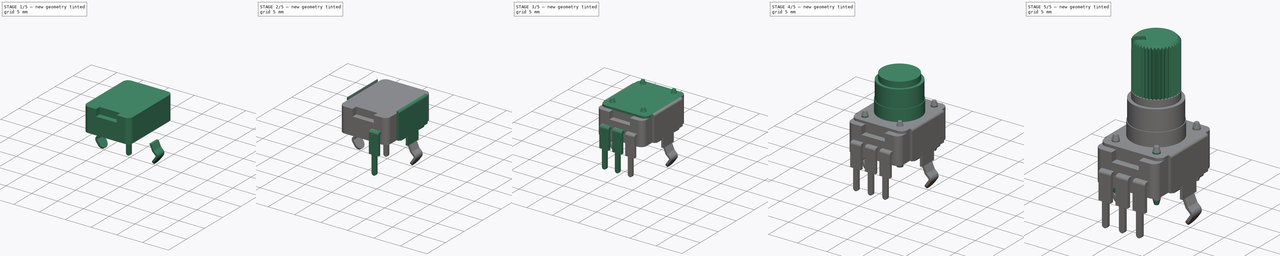
[diagram: build sequence overview — one tinted view per stage of 5, left to right]
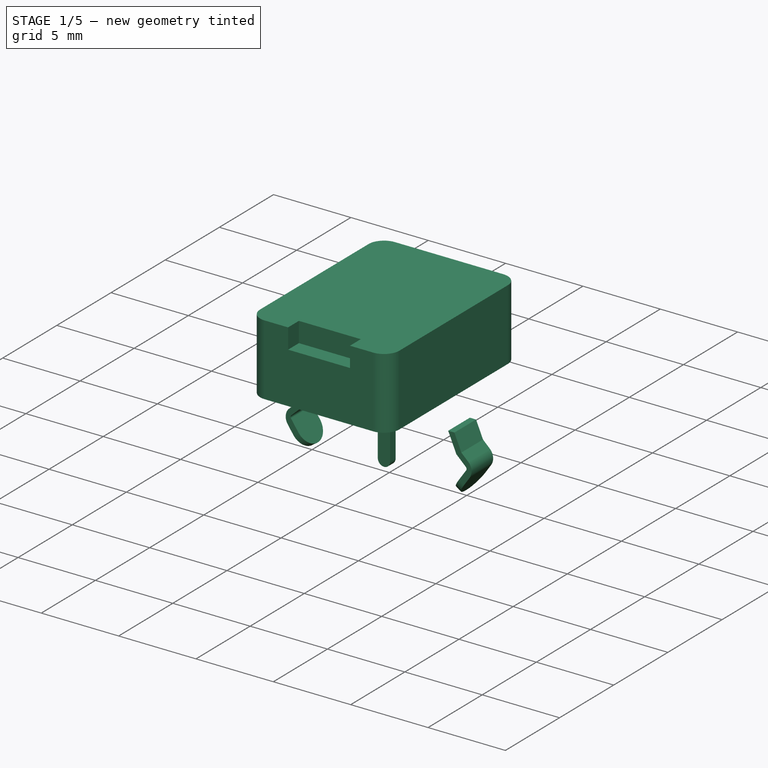
[diagram: stage 1 of 5 — iso view after this stage's code; geometry added in this stage tinted green]
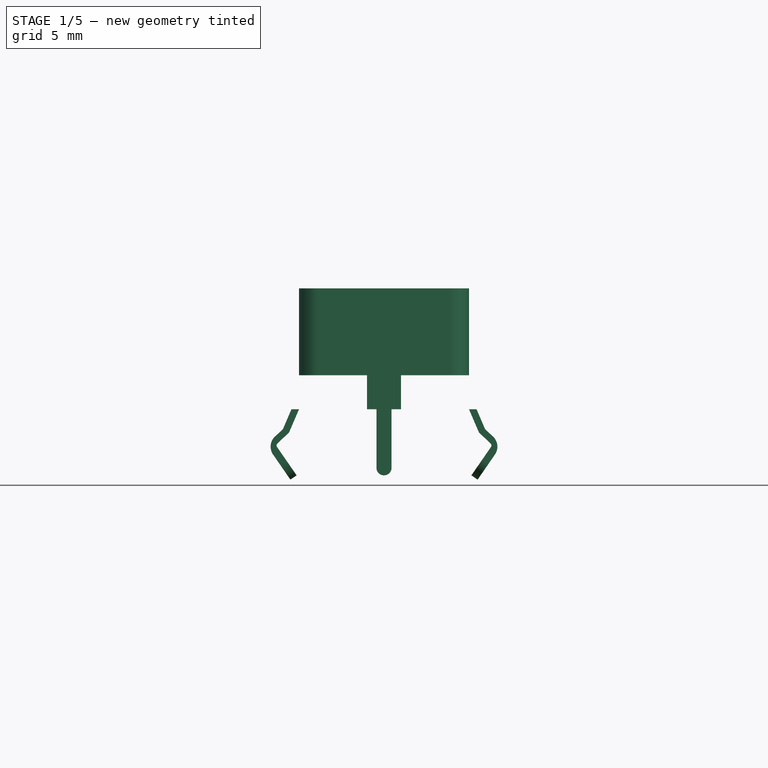
[diagram: stage 1 of 5 — front view after this stage's code; geometry added in this stage tinted green]
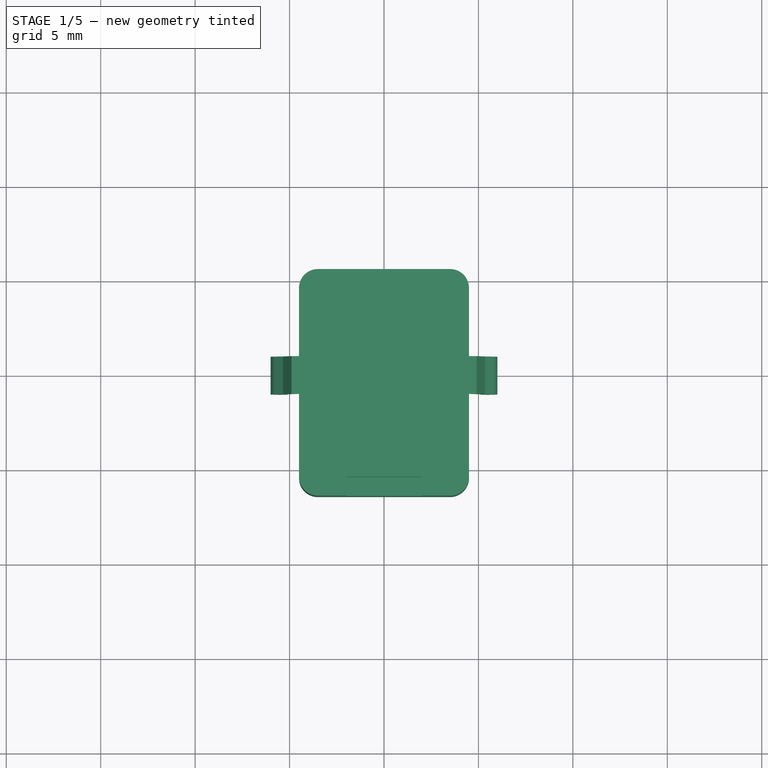
[diagram: stage 1 of 5 — top view after this stage's code; geometry added in this stage tinted green]
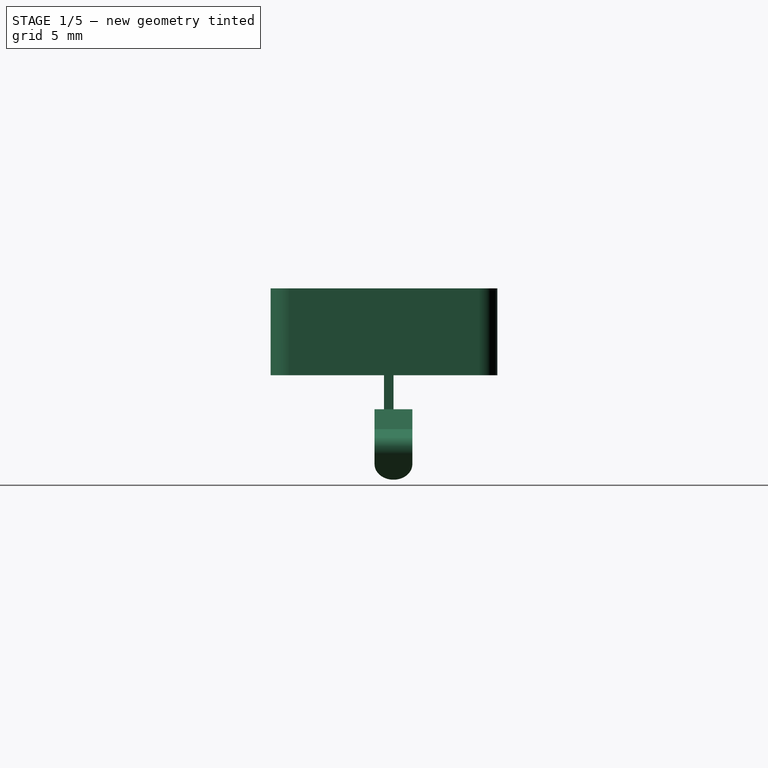
[diagram: stage 1 of 5 — right view after this stage's code; geometry added in this stage tinted green]
FCSTD DOCUMENT  (FreeCAD 0.19R24366 (Git))
Label: RV09
License: Creative Commons Attribution-ShareAlike
LicenseURL: http://creativecommons.org/licenses/by-sa/4.0/
objects: Part::Cylinder×12, Part::Box×11, Sketcher::SketchObject×10, PartDesign::Body×10, Part::Cone×9, PartDesign::Pad×9, Part::Fillet×7, Part::Cut×6, Part::Extrusion×1, App::Part×1
note: 84 computed .brp shape members not serialized (recipe doc carries the construction recipe); baked Part::Feature solids carry a one-line shape summary decoded from their .brp

FEATURE [Part::Box] Box001  label="Cube001"
  AttacherType = Attacher::AttachEngine3D
  Height = 4.6
  Length = 9
  Placement = pos=(-4.5,-6.5,1.8) rot=(0,0,1;0rad)
  Width = 12
FEATURE [Part::Fillet] Fillet
  Base = -> Box001
  Edges = 4 edges r=1: [Edge1,Edge3,Edge5,Edge7]
FEATURE [Sketcher::SketchObject] Sketch003
  FullyConstrained = true
  MapMode = 5
  Placement = pos=(0,0,0) rot=(1,0,0;1.5708rad)
  Support = -> [XZ_Plane009]
  sketch-geometry (8):
    g0: ArcOfCircle CenterX=0 CenterY=-3.1 CenterZ=0 NormalX=0 NormalY=0 NormalZ=1 AngleXU=0 Radius=0.4 StartAngle=3.14159 EndAngle=6.28319
    g1: LineSegment StartX=-0.4 StartY=-3.1 StartZ=0 EndX=-0.4 EndY=0 EndZ=0
    g2: LineSegment StartX=0.4 StartY=-3.1 StartZ=0 EndX=0.4 EndY=0 EndZ=0
    g3: LineSegment StartX=-0.4 StartY=0 StartZ=0 EndX=-0.9 EndY=0 EndZ=0
    g4: LineSegment StartX=0.4 StartY=0 StartZ=0 EndX=0.9 EndY=0 EndZ=0
    g5: LineSegment StartX=-0.9 StartY=0 StartZ=0 EndX=-0.9 EndY=4 EndZ=0
    g6: LineSegment StartX=0.9 StartY=0 StartZ=0 EndX=0.9 EndY=4 EndZ=0
    g7: LineSegment StartX=-0.9 StartY=4 StartZ=0 EndX=0.9 EndY=4 EndZ=0
  constraints (25):
    c: PointOnObject(g0,g-2)
    c: DistanceY(g0) = -3.1
    c: Diameter(g0) = 0.8
    c: DistanceY(g0) = -3.1
    c: DistanceY(g0) = -3.1
    c: Vertical(g1)
    c: Vertical(g2)
    c: Coincident(g0,g1)
    c: Coincident(g0,g2)
    c: DistanceY(g1) = 0
    c: DistanceY(g2) = 0
    c: Horizontal(g3)
    c: Horizontal(g4)
    c: DistanceX(g3) = -0.9
    c: DistanceX(g4) = 0.9
    c: Coincident(g1,g3)
    c: Coincident(g2,g4)
    c: Vertical(g5)
    c: Vertical(g6)
    c: DistanceY(g5) = 4
    c: DistanceY(g6) = 4
    c: Coincident(g3,g5)
    c: Coincident(g4,g6)
    c: Coincident(g5,g7)
    c: Coincident(g6,g7)
FEATURE [PartDesign::Pad] Pad002
  Direction = (1,1,1)
  Length = 0.5
  Length2 = 100
  Placement = pos=(0,0,0) rot=(1,0,0;1.5708rad)
  Profile = -> Sketch003
  Type = 0
FEATURE [App::Part] Part
  Group = -> [Pad001Body,Pad002Body]
  Origin = -> Origin005
FEATURE [Sketcher::SketchObject] Sketch007
  FullyConstrained = true
  MapMode = 5
  Placement = pos=(0,0,0) rot=(1,0,0;1.5708rad)
  Support = -> [XZ_Plane011]
  sketch-geometry (10):
    g0: LineSegment StartX=-4.9 StartY=0 StartZ=0 EndX=-5.35003 EndY=-1.05 EndZ=0
    g1: LineSegment StartX=-4.5 StartY=0 StartZ=0 EndX=-5.02718 EndY=-1.23 EndZ=0
    g2: LineSegment StartX=-4.9 StartY=0 StartZ=0 EndX=-4.5 EndY=0 EndZ=0
    g3: LineSegment StartX=-5.35003 StartY=-1.05 StartZ=0 EndX=-5.82594 EndY=-1.5 EndZ=0
    g4: LineSegment StartX=-5.02718 StartY=-1.23 StartZ=0 EndX=-5.63 EndY=-1.8 EndZ=0
    g5: LineSegment StartX=-5.67 StartY=-1.98928 StartZ=0 EndX=-4.6269 EndY=-3.5 EndZ=0
    g6: LineSegment StartX=-4.6269 StartY=-3.5 StartZ=0 EndX=-4.95606 EndY=-3.72727 EndZ=0
    g7: LineSegment StartX=-4.95606 StartY=-3.72727 StartZ=0 EndX=-5.8794 EndY=-2.39 EndZ=0
    g8: ArcOfCircle CenterX=-5.27 CenterY=-1.98 CenterZ=0 NormalX=0 NormalY=0 NormalZ=1 AngleXU=0 Radius=0.734487 StartAngle=2.42937 EndAngle=3.73382
    g9: ArcOfCircle CenterX=-5.53 CenterY=-1.92 CenterZ=0 NormalX=0 NormalY=0 NormalZ=1 AngleXU=0 Radius=0.156205 StartAngle=2.26553 EndAngle=3.60113
  constraints (32):
    c: PointOnObject(g0,g-1)
    c: DistanceX(g0) = -4.9
    c: DistanceY(g0) = -1.05
    c: DistanceY(g1) = -1.23
    c: DistanceX(g1) = -4.5
    c: Coincident(g1,g2)
    c: Coincident(g0,g2)
    c: Angle(g0,g2) = 1.97571
    c: DistanceY(g1,g0) = 0
    c: Parallel(g0,g1)
    c: Coincident(g0,g3)
    c: Coincident(g1,g4)
    c: Parallel(g3,g4)
    c: DistanceY(g5) = -3.5
    c: Coincident(g5,g6)
    c: Angle(g5,g6) = 1.5708
    c: Distance(g6) = 0.4
    c: Coincident(g6,g7)
    c: Angle(g6,g7) = 1.5708
    c: Coincident(g3,g8)
    c: Coincident(g7,g8)
    c: DistanceX(g8) = -5.27
    c: DistanceY(g8) = -1.98
    c: DistanceY(g3) = -1.5
    c: Coincident(g9,g5)
    c: Coincident(g9,g4)
    c: DistanceX(g9) = -5.53
    c: DistanceY(g9) = -1.92
    c: DistanceY(g4) = -1.8
    c: DistanceX(g4) = -5.63
    c: DistanceX(g5) = -5.67
    c: DistanceY(g7) = -2.39
FEATURE [PartDesign::Pad] Pad005
  Direction = (1,1,1)
  Length = 2
  Length2 = 100
  Placement = pos=(0,0,0) rot=(1,0,0;1.5708rad)
  Profile = -> Sketch007
  Type = 0
FEATURE [PartDesign::Body] Body005
  Group = -> [Sketch007,Pad005]
  Origin = -> Origin009
  Placement = pos=(0,1,0) rot=(0,0,1;0rad)
  Tip = -> Pad005
FEATURE [Sketcher::SketchObject] Sketch008
  FullyConstrained = true
  MapMode = 5
  Placement = pos=(0,0,0) rot=(1,0,0;1.5708rad)
  Support = -> [XZ_Plane012]
  sketch-geometry (10):
    g0: LineSegment StartX=4.5 StartY=0 StartZ=0 EndX=4.9 EndY=0 EndZ=0
    g1: LineSegment StartX=4.5 StartY=0 StartZ=0 EndX=5.02714 EndY=-1.23 EndZ=0
    g2: LineSegment StartX=4.9 StartY=0 StartZ=0 EndX=5.35 EndY=-1.05 EndZ=0
    g3: LineSegment StartX=5.35 StartY=-1.05 StartZ=0 EndX=5.82594 EndY=-1.5 EndZ=0
    g4: LineSegment StartX=5.02714 StartY=-1.23 StartZ=0 EndX=5.63 EndY=-1.8 EndZ=0
    g5: LineSegment StartX=5.67 StartY=-1.98928 StartZ=0 EndX=4.62688 EndY=-3.5 EndZ=0
    g6: LineSegment StartX=4.62688 StartY=-3.5 StartZ=0 EndX=4.95604 EndY=-3.72728 EndZ=0
    g7: LineSegment StartX=4.95604 StartY=-3.72728 StartZ=0 EndX=5.8794 EndY=-2.39 EndZ=0
    g8: ArcOfCircle CenterX=5.53 CenterY=-1.92 CenterZ=0 NormalX=0 NormalY=0 NormalZ=1 AngleXU=0 Radius=0.156205 StartAngle=5.82365 EndAngle=7.15924
    g9: ArcOfCircle CenterX=5.27 CenterY=-1.98 CenterZ=0 NormalX=0 NormalY=0 NormalZ=1 AngleXU=0 Radius=0.734486 StartAngle=5.69095 EndAngle=6.99541
  constraints (32):
    c: Horizontal(g0)
    c: DistanceX(g0) = 4.5
    c: DistanceX(g0) = 4.9
    c: Coincident(g0,g1)
    c: Coincident(g0,g2)
    c: Parallel(g1,g2)
    c: DistanceY(g0) = 0
    c: DistanceY(g1) = -1.23
    c: DistanceY(g2) = -1.05
    c: Coincident(g1,g4)
    c: Coincident(g2,g3)
    c: DistanceY(g3) = -1.5
    c: Parallel(g4,g3)
    c: DistanceY(g4) = -1.8
    c: DistanceX(g4) = 5.63
    c: DistanceX(g2) = 5.35
    c: Distance(g6) = 0.4
    c: Coincident(g5,g6)
    c: Coincident(g6,g7)
    c: Angle(g6,g5) = 1.5708
    c: Angle(g7,g6) = 1.5708
    c: DistanceY(g7) = -2.39
    c: DistanceX(g5) = 5.67
    c: Coincident(g4,g8)
    c: Coincident(g5,g8)
    c: DistanceX(g8) = 5.53
    c: DistanceY(g8) = -1.92
    c: Coincident(g3,g9)
    c: Coincident(g7,g9)
    c: DistanceY(g9) = -1.98
    c: DistanceX(g9) = 5.27
    c: DistanceY(g5) = -3.5
FEATURE [PartDesign::Pad] Pad006
  Direction = (1,1,1)
  Length = 2
  Length2 = 100
  Placement = pos=(0,0,0) rot=(1,0,0;1.5708rad)
  Profile = -> Sketch008
  Type = 0
FEATURE [PartDesign::Body] Body006
  Group = -> [Sketch008,Pad006]
  Origin = -> Origin010
  Placement = pos=(0,1,0) rot=(0,0,1;0rad)
  Tip = -> Pad006
FEATURE [Sketcher::SketchObject] Sketch009
  FullyConstrained = true
  MapMode = 5
  Placement = pos=(0,0,0) rot=(0.57735,0.57735,0.57735;2.0944rad)
  Support = -> [YZ_Plane011]
  sketch-geometry (4):
    g0: ArcOfCircle CenterX=0 CenterY=1.01 CenterZ=0 NormalX=0 NormalY=0 NormalZ=1 AngleXU=0 Radius=1 StartAngle=3.14159 EndAngle=6.28319
    g1: LineSegment StartX=-1 StartY=1.01 StartZ=0 EndX=-1 EndY=0 EndZ=0
    g2: LineSegment StartX=-1 StartY=0 StartZ=0 EndX=1 EndY=0 EndZ=0
    g3: LineSegment StartX=1 StartY=0 StartZ=0 EndX=1 EndY=1.01 EndZ=0
  constraints (13):
    c: PointOnObject(g0,g-2)
    c: DistanceY(g0) = 1.01
    c: Radius(g0) = 1
    c: DistanceX(g0) = -1
    c: DistanceX(g0) = 1
    c: Vertical(g1)
    c: Coincident(g2,g1)
    c: Horizontal(g2)
    c: Coincident(g3,g2)
    c: Vertical(g3)
    c: Coincident(g0,g1)
    c: Coincident(g0,g3)
    c: DistanceY(g1) = 0
FEATURE [PartDesign::Pad] Pad007
  Direction = (1,1,1)
  Length = 0.45
  Length2 = 100
  Placement = pos=(0,0,0) rot=(0.57735,0.57735,0.57735;2.0944rad)
  Profile = -> Sketch009
  Type = 0
FEATURE [PartDesign::Body] Body007
  Group = -> [Sketch009,Pad007]
  Origin = -> Origin011
  Placement = pos=(-4.97,0,-3.75) rot=(0,1,0;-0.603011rad)
  Tip = -> Pad007
FEATURE [Sketcher::SketchObject] Sketch010
  FullyConstrained = true
  MapMode = 5
  Placement = pos=(0,0,0) rot=(0.57735,0.57735,0.57735;2.0944rad)
  Support = -> [YZ_Plane012]
  sketch-geometry (4):
    g0: ArcOfCircle CenterX=0 CenterY=1.01 CenterZ=0 NormalX=0 NormalY=0 NormalZ=1 AngleXU=0 Radius=1 StartAngle=3.14159 EndAngle=6.28319
    g1: LineSegment StartX=-1 StartY=1.01 StartZ=0 EndX=-1 EndY=0 EndZ=0
    g2: LineSegment StartX=-1 StartY=0 StartZ=0 EndX=1 EndY=0 EndZ=0
    g3: LineSegment StartX=1 StartY=0 StartZ=0 EndX=1 EndY=1.01 EndZ=0
  constraints (13):
    c: PointOnObject(g0,g-2)
    c: DistanceY(g0) = 1.01
    c: Radius(g0) = 1
    c: DistanceX(g0) = -1
    c: DistanceX(g0) = 1
    c: Vertical(g1)
    c: Coincident(g2,g1)
    c: Horizontal(g2)
    c: Coincident(g3,g2)
    c: Vertical(g3)
    c: Coincident(g0,g1)
    c: Coincident(g0,g3)
    c: DistanceY(g1) = 0
FEATURE [PartDesign::Pad] Pad008
  Direction = (1,1,1)
  Length = 0.45
  Length2 = 100
  Placement = pos=(0,0,0) rot=(0.57735,0.57735,0.57735;2.0944rad)
  Profile = -> Sketch010
  Type = 0
FEATURE [PartDesign::Body] Body008
  Group = -> [Sketch010,Pad008]
  Origin = -> Origin012
  Placement = pos=(4.6,0,-3.5) rot=(0,1,0;0.603011rad)
  Tip = -> Pad008
FEATURE [Part::Cut] Cut003
  Base = -> Body006
  Tool = -> Body008
FEATURE [Part::Cut] Cut004
  Base = -> Body005
  Tool = -> Body007
FEATURE [Part::Box] Box010  label="Cube010"
  AttacherType = Attacher::AttachEngine3D
  Height = 1.3
  Length = 4
  Placement = pos=(-2,-6.5,5.1) rot=(0,0,1;0rad)
  Width = 1
FEATURE [Part::Cut] Cut005
  Base = -> Fillet
  Tool = -> Box010
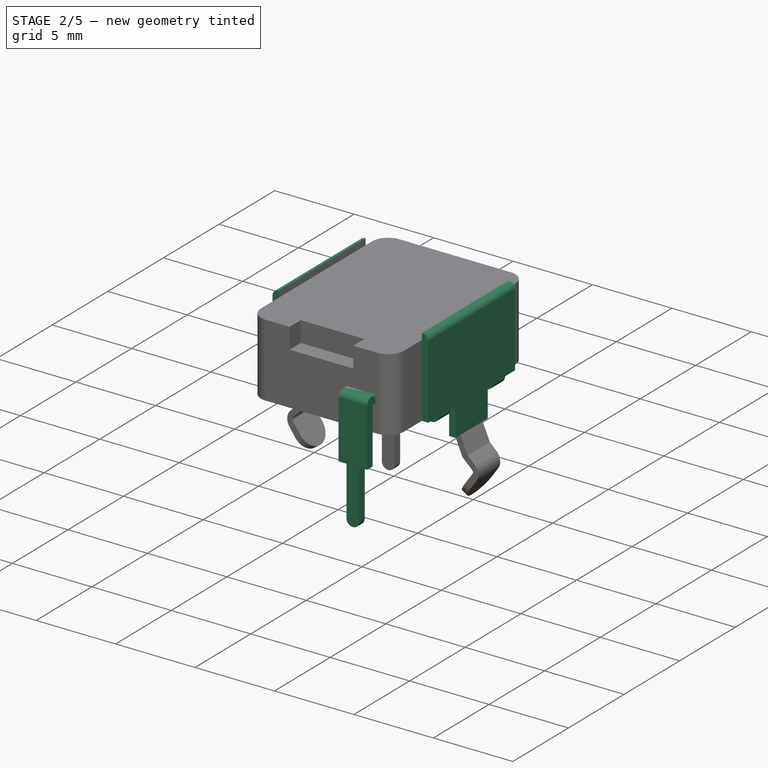
[diagram: stage 2 of 5 — iso view after this stage's code; geometry added in this stage tinted green]
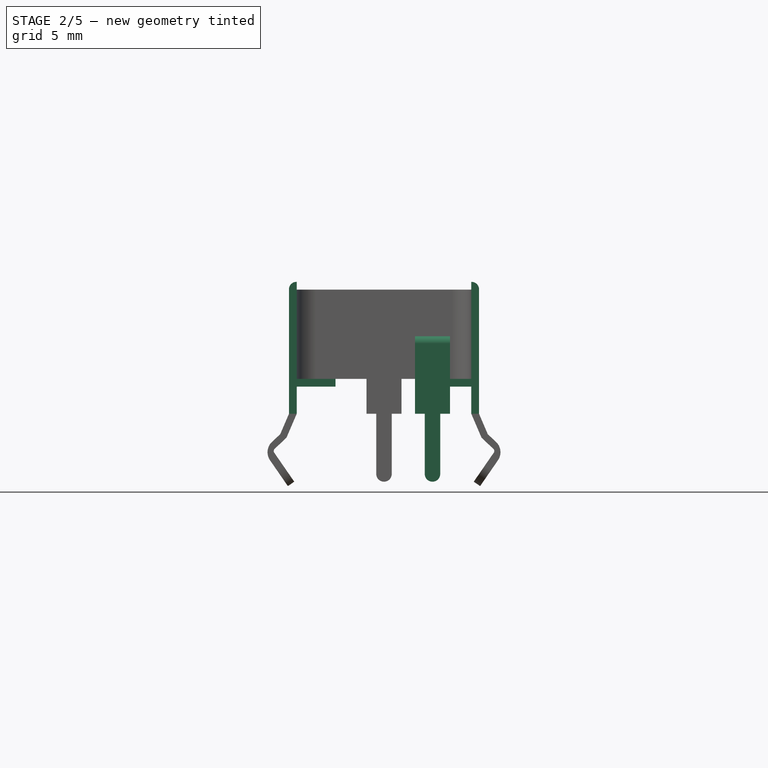
[diagram: stage 2 of 5 — front view after this stage's code; geometry added in this stage tinted green]
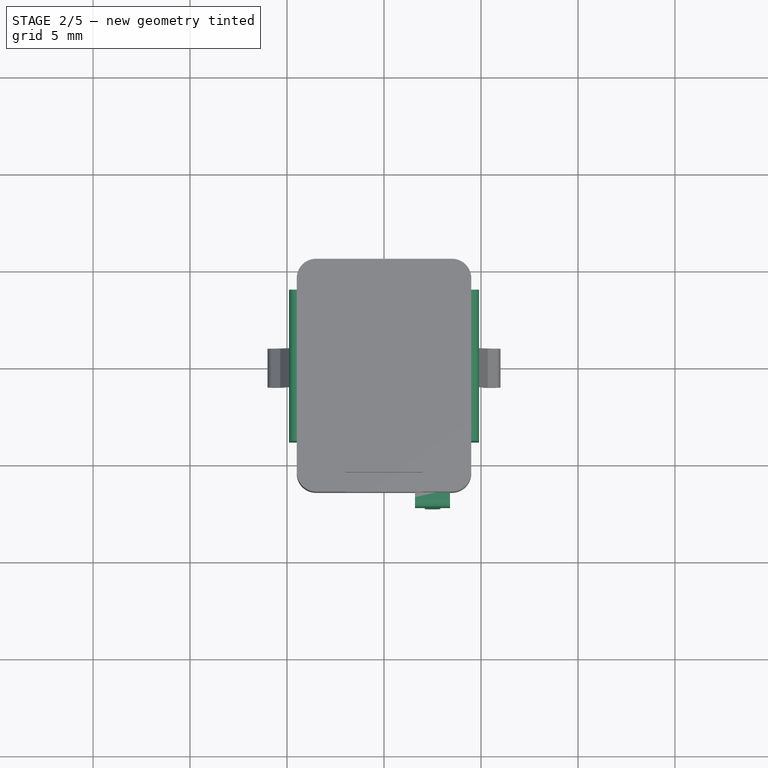
[diagram: stage 2 of 5 — top view after this stage's code; geometry added in this stage tinted green]
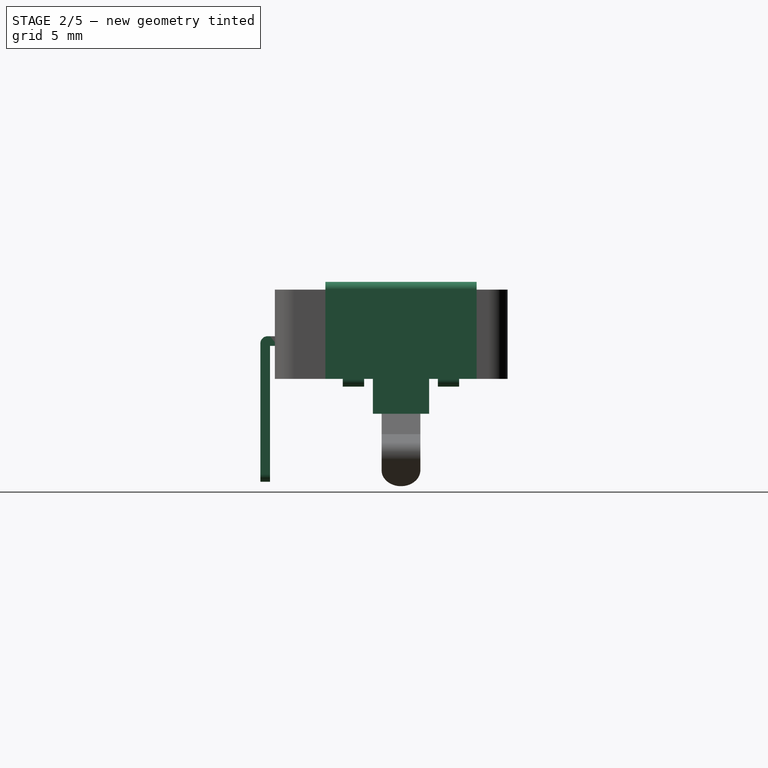
[diagram: stage 2 of 5 — right view after this stage's code; geometry added in this stage tinted green]
FEATURE [Sketcher::SketchObject] Sketch002
  FullyConstrained = true
  MapMode = 5
  Placement = pos=(0,0,0) rot=(1,0,0;1.5708rad)
  Support = -> [XZ_Plane008]
  sketch-geometry (8):
    g0: ArcOfCircle CenterX=0 CenterY=-3.1 CenterZ=0 NormalX=0 NormalY=0 NormalZ=1 AngleXU=0 Radius=0.4 StartAngle=3.14159 EndAngle=6.28319
    g1: LineSegment StartX=-0.4 StartY=-3.1 StartZ=0 EndX=-0.4 EndY=0 EndZ=0
    g2: LineSegment StartX=0.4 StartY=-3.1 StartZ=0 EndX=0.4 EndY=0 EndZ=0
    g3: LineSegment StartX=-0.4 StartY=0 StartZ=0 EndX=-0.9 EndY=0 EndZ=0
    g4: LineSegment StartX=0.4 StartY=0 StartZ=0 EndX=0.9 EndY=0 EndZ=0
    g5: LineSegment StartX=-0.9 StartY=0 StartZ=0 EndX=-0.9 EndY=4 EndZ=0
    g6: LineSegment StartX=0.9 StartY=0 StartZ=0 EndX=0.9 EndY=4 EndZ=0
    g7: LineSegment StartX=-0.9 StartY=4 StartZ=0 EndX=0.9 EndY=4 EndZ=0
  constraints (25):
    c: PointOnObject(g0,g-2)
    c: DistanceY(g0) = -3.1
    c: Diameter(g0) = 0.8
    c: DistanceY(g0) = -3.1
    c: DistanceY(g0) = -3.1
    c: Vertical(g1)
    c: Vertical(g2)
    c: Coincident(g0,g1)
    c: Coincident(g0,g2)
    c: DistanceY(g1) = 0
    c: DistanceY(g2) = 0
    c: Horizontal(g3)
    c: Horizontal(g4)
    c: DistanceX(g3) = -0.9
    c: DistanceX(g4) = 0.9
    c: Coincident(g1,g3)
    c: Coincident(g2,g4)
    c: Vertical(g5)
    c: Vertical(g6)
    c: DistanceY(g5) = 4
    c: DistanceY(g6) = 4
    c: Coincident(g3,g5)
    c: Coincident(g4,g6)
    c: Coincident(g5,g7)
    c: Coincident(g6,g7)
FEATURE [PartDesign::Pad] Pad001
  Direction = (1,1,1)
  Length = 0.5
  Length2 = 100
  Placement = pos=(0,0,0) rot=(1,0,0;1.5708rad)
  Profile = -> Sketch002
  Type = 0
FEATURE [Part::Box] Box005  label="Cube005"
  AttacherType = Attacher::AttachEngine3D
  Height = 0.5
  Length = 1.8
  Placement = pos=(1.6,-6.75,3.5) rot=(0,0,1;0rad)
  Width = 0.4
FEATURE [Sketcher::SketchObject] Sketch004
  FullyConstrained = true
  MapMode = 5
  Placement = pos=(0,0,0) rot=(0.57735,0.57735,0.57735;2.0944rad)
  Support = -> [YZ_Plane002]
  sketch-geometry (16):
    g0: LineSegment StartX=-1.45 StartY=0 StartZ=0 EndX=1.45 EndY=0 EndZ=0
    g1: LineSegment StartX=-1.45 StartY=0 StartZ=0 EndX=-1.45 EndY=1.8 EndZ=0
    g2: LineSegment StartX=1.45 StartY=0 StartZ=0 EndX=1.45 EndY=1.8 EndZ=0
    g3: LineSegment StartX=-1.45 StartY=1.8 StartZ=0 EndX=-1.9 EndY=1.8 EndZ=0
    g4: LineSegment StartX=1.45 StartY=1.8 StartZ=0 EndX=1.9 EndY=1.8 EndZ=0
    g5: LineSegment StartX=1.9 StartY=1.8 StartZ=0 EndX=1.9 EndY=1.4 EndZ=0
    g6: LineSegment StartX=-1.9 StartY=1.8 StartZ=0 EndX=-1.9 EndY=1.4 EndZ=0
    g7: LineSegment StartX=-1.9 StartY=1.4 StartZ=0 EndX=-3 EndY=1.4 EndZ=0
    g8: LineSegment StartX=1.9 StartY=1.4 StartZ=0 EndX=3 EndY=1.4 EndZ=0
    g9: LineSegment StartX=-3 StartY=1.4 StartZ=0 EndX=-3 EndY=1.8 EndZ=0
    g10: LineSegment StartX=3 StartY=1.4 StartZ=0 EndX=3 EndY=1.8 EndZ=0
    g11: LineSegment StartX=-3 StartY=1.8 StartZ=0 EndX=-3.9 EndY=1.8 EndZ=0
    g12: LineSegment StartX=3 StartY=1.8 StartZ=0 EndX=3.9 EndY=1.8 EndZ=0
    g13: LineSegment StartX=-3.9 StartY=1.8 StartZ=0 EndX=-3.9 EndY=6.8 EndZ=0
    g14: LineSegment StartX=3.9 StartY=1.8 StartZ=0 EndX=3.9 EndY=6.8 EndZ=0
    g15: LineSegment StartX=-3.9 StartY=6.8 StartZ=0 EndX=3.9 EndY=6.8 EndZ=0
  constraints (48):
    c: Horizontal(g0)
    c: DistanceX(g0) = -1.45
    c: DistanceX(g0) = 1.45
    c: DistanceY(g0) = 0
    c: Vertical(g1)
    c: Coincident(g0,g1)
    c: DistanceY(g1) = 1.8
    c: Vertical(g2)
    c: Coincident(g0,g2)
    c: DistanceY(g2) = 1.8
    c: Horizontal(g3)
    c: Coincident(g1,g3)
    c: DistanceX(g3) = -1.9
    c: Horizontal(g4)
    c: Coincident(g2,g4)
    c: DistanceX(g4) = 1.9
    c: Vertical(g5)
    c: Coincident(g4,g5)
    c: DistanceY(g5) = 1.4
    c: Vertical(g6)
    c: Coincident(g3,g6)
    c: DistanceY(g6) = 1.4
    c: Horizontal(g7)
    c: Horizontal(g8)
    c: Coincident(g5,g8)
    c: Coincident(g6,g7)
    c: DistanceX(g7) = -3
    c: DistanceX(g8) = 3
    c: Vertical(g9)
    c: Vertical(g10)
    c: Coincident(g7,g9)
    c: Coincident(g8,g10)
    c: DistanceY(g9) = 1.8
    c: DistanceY(g10) = 1.8
    c: Horizontal(g12)
    c: Horizontal(g11)
    c: Coincident(g9,g11)
    c: Coincident(g10,g12)
    c: DistanceX(g11) = -3.9
    c: DistanceX(g12) = 3.9
    c: Vertical(g13)
    c: Vertical(g14)
    c: Horizontal(g15)
    c: Coincident(g11,g13)
    c: Coincident(g12,g14)
    c: DistanceY(g13) = 6.8
    c: Coincident(g13,g15)
    c: Coincident(g14,g15)
FEATURE [PartDesign::Pad] Pad003
  Direction = (1,1,1)
  Length = 0.4
  Length2 = 100
  Placement = pos=(0,0,0) rot=(0.57735,0.57735,0.57735;2.0944rad)
  Profile = -> Sketch004
  Type = 0
FEATURE [PartDesign::Body] Body002
  Group = -> [Sketch004,Pad003]
  Origin = -> Origin002
  Placement = pos=(4.5,0,0) rot=(0,0,1;0rad)
  Tip = -> Pad003
FEATURE [Sketcher::SketchObject] Sketch005
  FullyConstrained = true
  MapMode = 5
  Placement = pos=(0,0,0) rot=(0.57735,0.57735,0.57735;2.0944rad)
  Support = -> [YZ_Plane003]
  sketch-geometry (16):
    g0: LineSegment StartX=-1.45 StartY=0 StartZ=0 EndX=1.45 EndY=0 EndZ=0
    g1: LineSegment StartX=-1.45 StartY=0 StartZ=0 EndX=-1.45 EndY=1.8 EndZ=0
    g2: LineSegment StartX=1.45 StartY=0 StartZ=0 EndX=1.45 EndY=1.8 EndZ=0
    g3: LineSegment StartX=-1.45 StartY=1.8 StartZ=0 EndX=-1.9 EndY=1.8 EndZ=0
    g4: LineSegment StartX=1.45 StartY=1.8 StartZ=0 EndX=1.9 EndY=1.8 EndZ=0
    g5: LineSegment StartX=1.9 StartY=1.8 StartZ=0 EndX=1.9 EndY=1.4 EndZ=0
    g6: LineSegment StartX=-1.9 StartY=1.8 StartZ=0 EndX=-1.9 EndY=1.4 EndZ=0
    g7: LineSegment StartX=-1.9 StartY=1.4 StartZ=0 EndX=-3 EndY=1.4 EndZ=0
    g8: LineSegment StartX=1.9 StartY=1.4 StartZ=0 EndX=3 EndY=1.4 EndZ=0
    g9: LineSegment StartX=-3 StartY=1.4 StartZ=0 EndX=-3 EndY=1.8 EndZ=0
    g10: LineSegment StartX=3 StartY=1.4 StartZ=0 EndX=3 EndY=1.8 EndZ=0
    g11: LineSegment StartX=-3 StartY=1.8 StartZ=0 EndX=-3.9 EndY=1.8 EndZ=0
    g12: LineSegment StartX=3 StartY=1.8 StartZ=0 EndX=3.9 EndY=1.8 EndZ=0
    g13: LineSegment StartX=-3.9 StartY=1.8 StartZ=0 EndX=-3.9 EndY=6.8 EndZ=0
    g14: LineSegment StartX=3.9 StartY=1.8 StartZ=0 EndX=3.9 EndY=6.8 EndZ=0
    g15: LineSegment StartX=-3.9 StartY=6.8 StartZ=0 EndX=3.9 EndY=6.8 EndZ=0
  constraints (48):
    c: Horizontal(g0)
    c: DistanceX(g0) = -1.45
    c: DistanceX(g0) = 1.45
    c: DistanceY(g0) = 0
    c: Vertical(g1)
    c: Coincident(g0,g1)
    c: DistanceY(g1) = 1.8
    c: Vertical(g2)
    c: Coincident(g0,g2)
    c: DistanceY(g2) = 1.8
    c: Horizontal(g3)
    c: Coincident(g1,g3)
    c: DistanceX(g3) = -1.9
    c: Horizontal(g4)
    c: Coincident(g2,g4)
    c: DistanceX(g4) = 1.9
    c: Vertical(g5)
    c: Coincident(g4,g5)
    c: DistanceY(g5) = 1.4
    c: Vertical(g6)
    c: Coincident(g3,g6)
    c: DistanceY(g6) = 1.4
    c: Horizontal(g7)
    c: Horizontal(g8)
    c: Coincident(g5,g8)
    c: Coincident(g6,g7)
    c: DistanceX(g7) = -3
    c: DistanceX(g8) = 3
    c: Vertical(g9)
    c: Vertical(g10)
    c: Coincident(g7,g9)
    c: Coincident(g8,g10)
    c: DistanceY(g9) = 1.8
    c: DistanceY(g10) = 1.8
    c: Horizontal(g12)
    c: Horizontal(g11)
    c: Coincident(g9,g11)
    c: Coincident(g10,g12)
    c: DistanceX(g11) = -3.9
    c: DistanceX(g12) = 3.9
    c: Vertical(g13)
    c: Vertical(g14)
    c: Horizontal(g15)
    c: Coincident(g11,g13)
    c: Coincident(g12,g14)
    c: DistanceY(g13) = 6.8
    c: Coincident(g13,g15)
    c: Coincident(g14,g15)
FEATURE [PartDesign::Pad] Pad004
  Direction = (1,1,1)
  Length = 0.4
  Length2 = 100
  Placement = pos=(0,0,0) rot=(0.57735,0.57735,0.57735;2.0944rad)
  Profile = -> Sketch005
  Type = 0
FEATURE [PartDesign::Body] Body003
  Group = -> [Sketch005,Pad004]
  Origin = -> Origin003
  Placement = pos=(-4.9,0,0) rot=(0,0,1;0rad)
  Tip = -> Pad004
FEATURE [Part::Box] Box006  label="Cube006"
  AttacherType = Attacher::AttachEngine3D
  Height = 0.4
  Length = 2
  Placement = pos=(2.5,1.9,1.4) rot=(0,0,1;0rad)
  Width = 1.1
FEATURE [Part::Box] Box007  label="Cube007"
  AttacherType = Attacher::AttachEngine3D
  Height = 0.4
  Length = 2
  Placement = pos=(2.5,-3,1.4) rot=(0,0,1;0rad)
  Width = 1.1
FEATURE [Part::Box] Box008  label="Cube008"
  AttacherType = Attacher::AttachEngine3D
  Height = 0.4
  Length = 2
  Placement = pos=(-4.5,1.9,1.4) rot=(0,0,1;0rad)
  Width = 1.1
FEATURE [Part::Box] Box009  label="Cube009"
  AttacherType = Attacher::AttachEngine3D
  Height = 0.4
  Length = 2
  Placement = pos=(-4.5,-3,1.4) rot=(0,0,1;0rad)
  Width = 1.1
FEATURE [Part::Fillet] Fillet005
  Base = -> Pad004
  Edges = 3 edges r=0.38: [Edge15,Edge27,Edge39]
  Placement = pos=(-4.9,0,0) rot=(0,0,1;0rad)
FEATURE [Part::Fillet] Fillet006
  Base = -> Pad003
  Edges = 3 edges r=0.38: [Edge16,Edge28,Edge40]
  Placement = pos=(4.5,0,0) rot=(0,0,1;0rad)
FEATURE [PartDesign::Body] Pad002Body
  Group = -> [Sketch003,Pad002]
  Origin = -> Origin007
  Tip = -> Pad002
FEATURE [Part::Fillet] Fillet004
  Base = -> Pad002Body
  Edges = 1 edges r=0.38: [Edge16]
  Placement = pos=(2.5,-6.75,0) rot=(0,0,1;0rad)
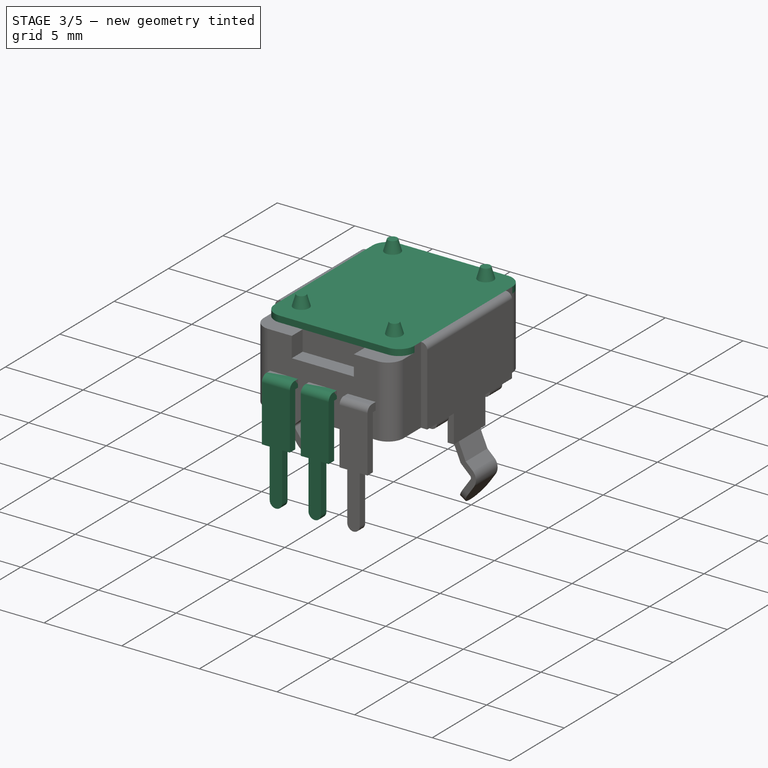
[diagram: stage 3 of 5 — iso view after this stage's code; geometry added in this stage tinted green]
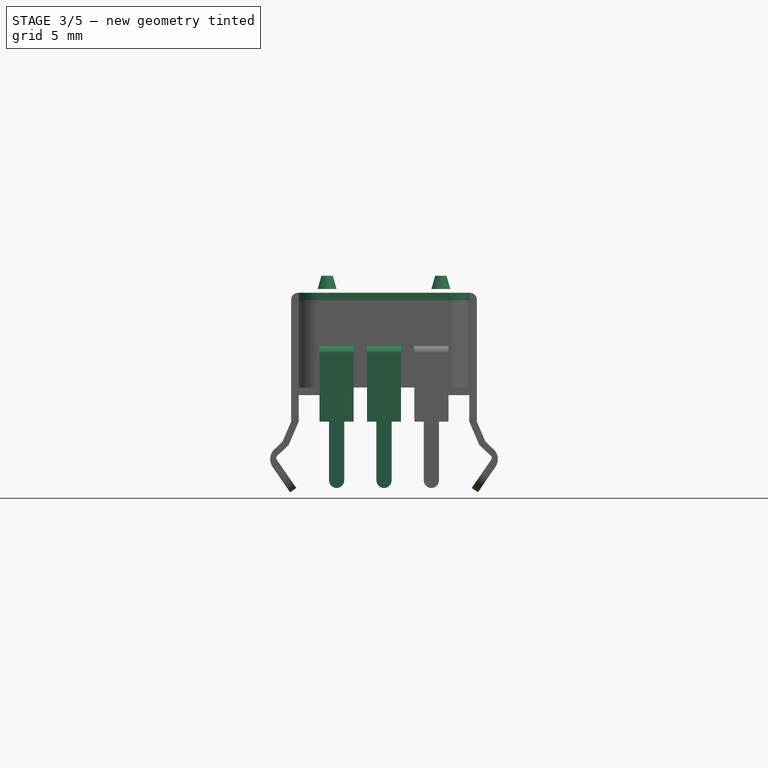
[diagram: stage 3 of 5 — front view after this stage's code; geometry added in this stage tinted green]
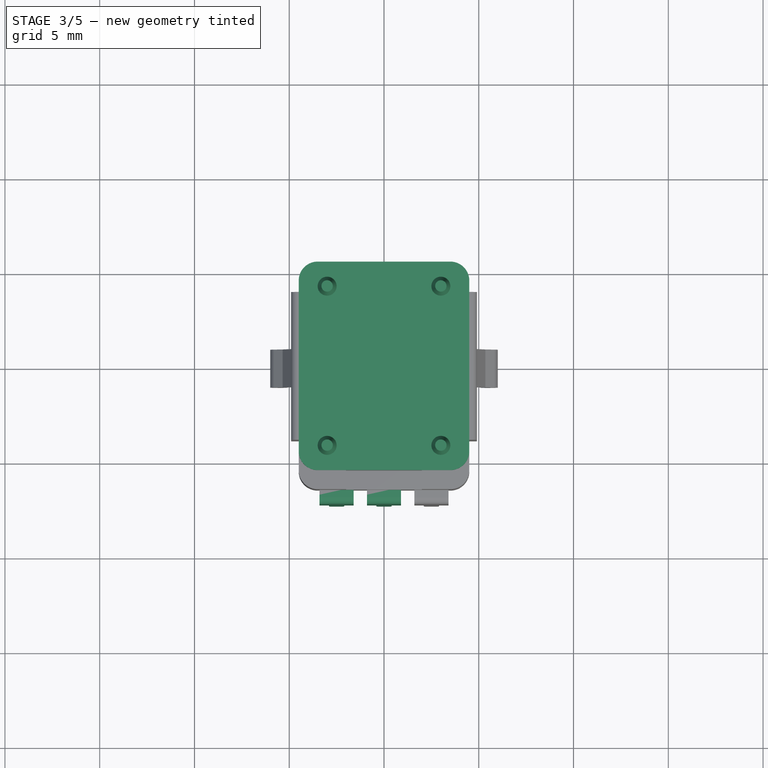
[diagram: stage 3 of 5 — top view after this stage's code; geometry added in this stage tinted green]
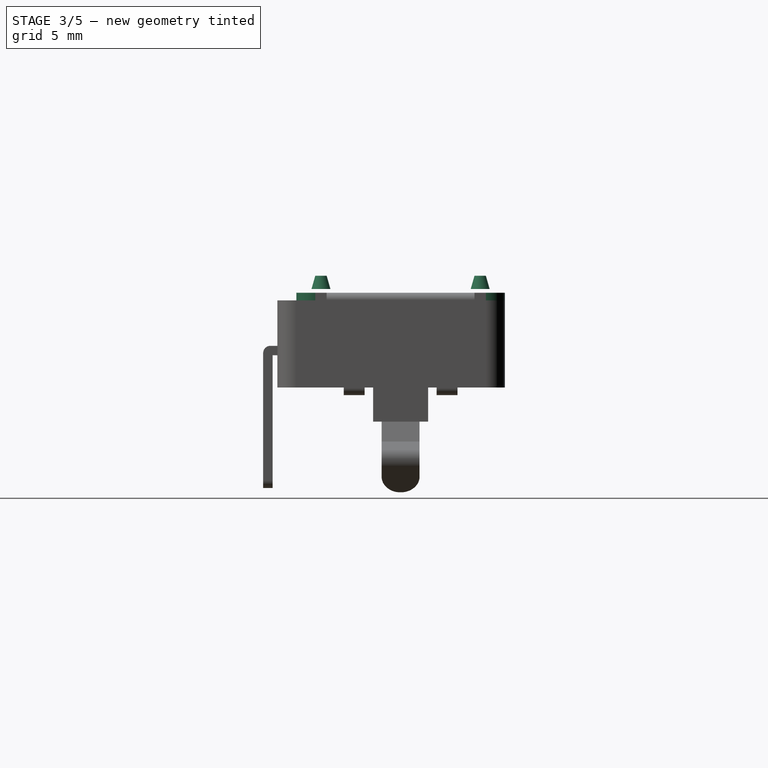
[diagram: stage 3 of 5 — right view after this stage's code; geometry added in this stage tinted green]
FEATURE [Part::Cone] Cone005
  Angle = 360
  AttacherType = Attacher::AttachEngine3D
  Height = 0.7
  Placement = pos=(-3,-4.2,7) rot=(0,0,1;0rad)
  Radius1 = 0.5
  Radius2 = 0.3
FEATURE [Part::Cone] Cone006
  Angle = 360
  AttacherType = Attacher::AttachEngine3D
  Height = 0.7
  Placement = pos=(3,-4.2,7) rot=(0,0,1;0rad)
  Radius1 = 0.5
  Radius2 = 0.3
FEATURE [Part::Cone] Cone007
  Angle = 360
  AttacherType = Attacher::AttachEngine3D
  Height = 0.7
  Placement = pos=(3,4.2,7) rot=(0,0,1;0rad)
  Radius1 = 0.5
  Radius2 = 0.3
FEATURE [Part::Cone] Cone008
  Angle = 360
  AttacherType = Attacher::AttachEngine3D
  Height = 0.7
  Placement = pos=(-3,4.2,7) rot=(0,0,1;0rad)
  Radius1 = 0.5
  Radius2 = 0.3
FEATURE [Part::Box] Box002  label="Cube002"
  AttacherType = Attacher::AttachEngine3D
  Height = 0.4
  Length = 9
  Placement = pos=(-4.5,-5.5,6.4) rot=(0,0,1;0rad)
  Width = 11
FEATURE [Part::Fillet] Fillet001
  Base = -> Box002
  Edges = 4 edges r=1: [Edge1,Edge3,Edge5,Edge7]
FEATURE [Sketcher::SketchObject] Sketch001
  FullyConstrained = true
  MapMode = 5
  Placement = pos=(0,0,0) rot=(1,0,0;1.5708rad)
  Support = -> [XZ_Plane001]
  sketch-geometry (8):
    g0: ArcOfCircle CenterX=0 CenterY=-3.1 CenterZ=0 NormalX=0 NormalY=0 NormalZ=1 AngleXU=0 Radius=0.4 StartAngle=3.14159 EndAngle=6.28319
    g1: LineSegment StartX=-0.4 StartY=-3.1 StartZ=0 EndX=-0.4 EndY=0 EndZ=0
    g2: LineSegment StartX=0.4 StartY=-3.1 StartZ=0 EndX=0.4 EndY=0 EndZ=0
    g3: LineSegment StartX=-0.4 StartY=0 StartZ=0 EndX=-0.9 EndY=0 EndZ=0
    g4: LineSegment StartX=0.4 StartY=0 StartZ=0 EndX=0.9 EndY=0 EndZ=0
    g5: LineSegment StartX=-0.9 StartY=0 StartZ=0 EndX=-0.9 EndY=4 EndZ=0
    g6: LineSegment StartX=0.9 StartY=0 StartZ=0 EndX=0.9 EndY=4 EndZ=0
    g7: LineSegment StartX=-0.9 StartY=4 StartZ=0 EndX=0.9 EndY=4 EndZ=0
  constraints (25):
    c: PointOnObject(g0,g-2)
    c: DistanceY(g0) = -3.1
    c: Diameter(g0) = 0.8
    c: DistanceY(g0) = -3.1
    c: DistanceY(g0) = -3.1
    c: Vertical(g1)
    c: Vertical(g2)
    c: Coincident(g0,g1)
    c: Coincident(g0,g2)
    c: DistanceY(g1) = 0
    c: DistanceY(g2) = 0
    c: Horizontal(g3)
    c: Horizontal(g4)
    c: DistanceX(g3) = -0.9
    c: DistanceX(g4) = 0.9
    c: Coincident(g1,g3)
    c: Coincident(g2,g4)
    c: Vertical(g5)
    c: Vertical(g6)
    c: DistanceY(g5) = 4
    c: DistanceY(g6) = 4
    c: Coincident(g3,g5)
    c: Coincident(g4,g6)
    c: Coincident(g5,g7)
    c: Coincident(g6,g7)
FEATURE [PartDesign::Pad] Pad
  Direction = (1,1,1)
  Length = 0.5
  Length2 = 100
  Placement = pos=(0,0,0) rot=(1,0,0;1.5708rad)
  Profile = -> Sketch001
  Type = 0
FEATURE [PartDesign::Body] Body001
  Group = -> [Sketch001,Pad]
  Origin = -> Origin001
  Placement = pos=(0,7.25,0) rot=(0,0,1;0rad)
  Tip = -> Pad
FEATURE [Part::Fillet] Fillet002
  Base = -> Pad
  Edges = 1 edges r=0.4: [Edge16]
  Placement = pos=(0,-6.75,0) rot=(0,0,1;0rad)
FEATURE [Part::Box] Box003  label="Cube003"
  AttacherType = Attacher::AttachEngine3D
  Height = 0.5
  Length = 1.8
  Placement = pos=(-0.9,-6.75,3.5) rot=(0,0,1;0rad)
  Width = 0.4
FEATURE [Part::Box] Box004  label="Cube004"
  AttacherType = Attacher::AttachEngine3D
  Height = 0.5
  Length = 1.8
  Placement = pos=(-3.4,-6.75,3.5) rot=(0,0,1;0rad)
  Width = 0.4
FEATURE [PartDesign::Body] Pad001Body
  Group = -> [Sketch002,Pad001]
  Origin = -> Origin006
  Tip = -> Pad001
FEATURE [Part::Fillet] Fillet003
  Base = -> Pad001Body
  Edges = 1 edges r=0.4: [Edge16]
  Placement = pos=(-2.5,-6.75,0) rot=(0,0,1;0rad)
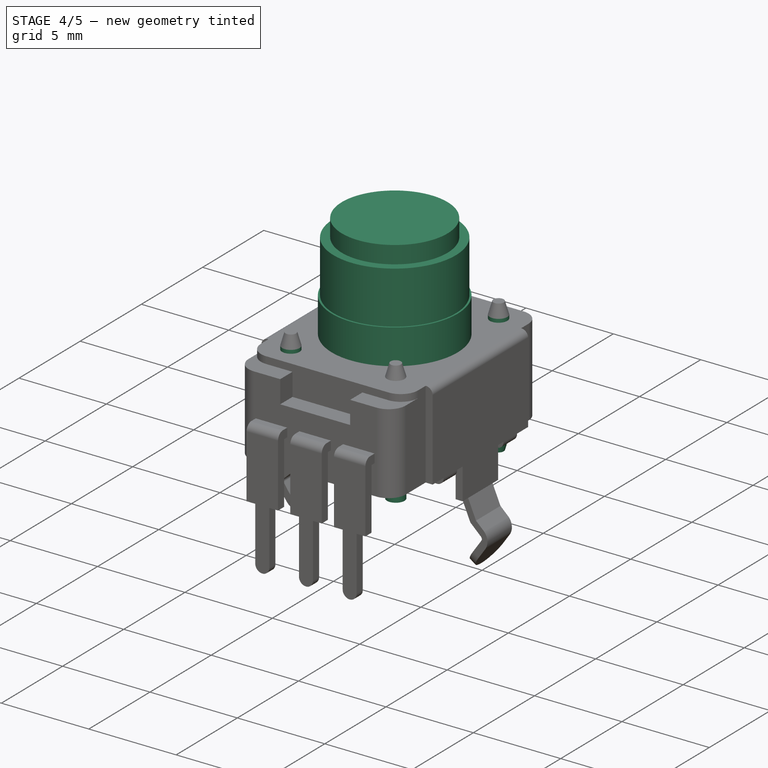
[diagram: stage 4 of 5 — iso view after this stage's code; geometry added in this stage tinted green]
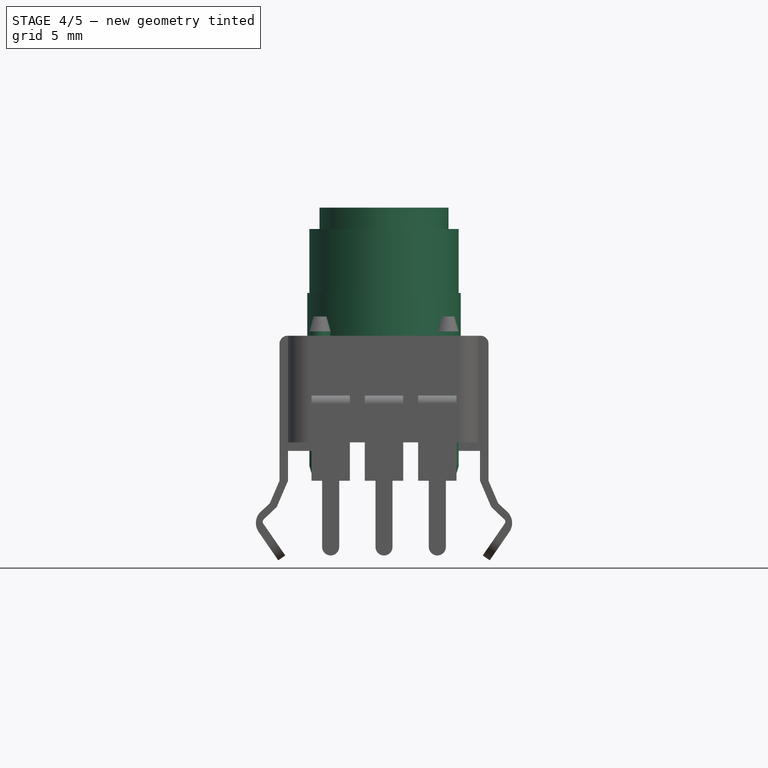
[diagram: stage 4 of 5 — front view after this stage's code; geometry added in this stage tinted green]
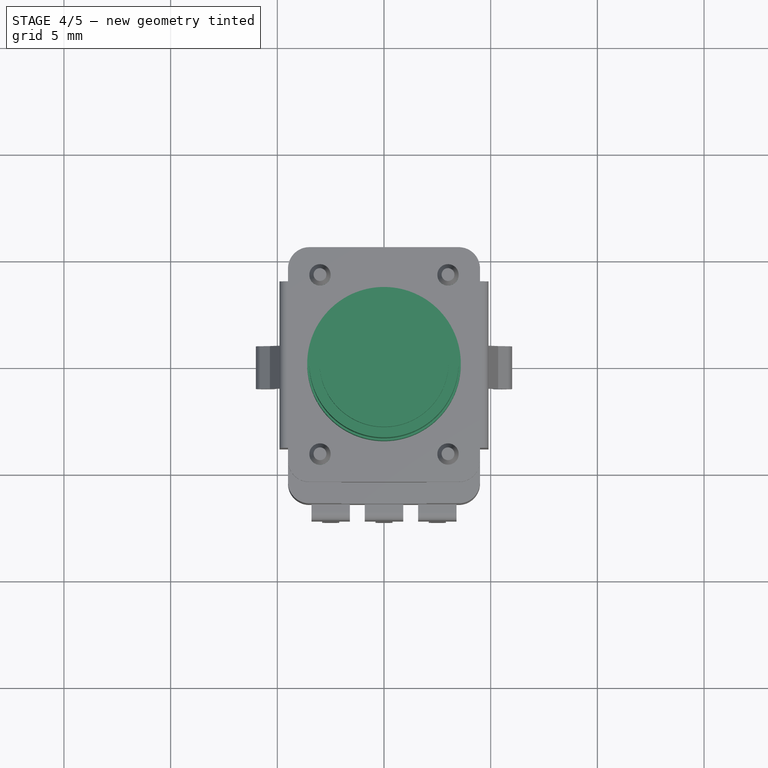
[diagram: stage 4 of 5 — top view after this stage's code; geometry added in this stage tinted green]
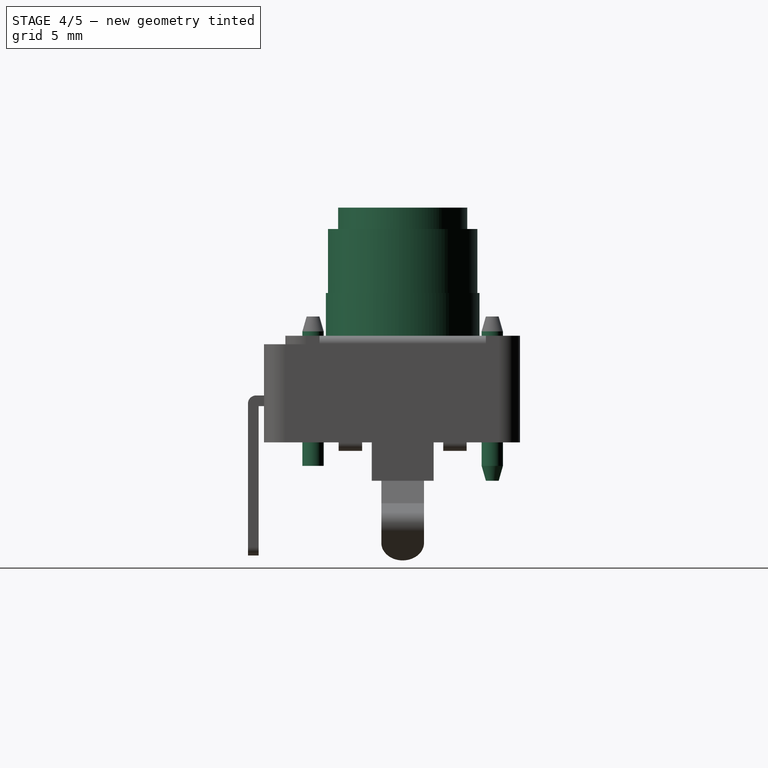
[diagram: stage 4 of 5 — right view after this stage's code; geometry added in this stage tinted green]
FEATURE [Part::Cone] Cone003
  Angle = 360
  AttacherType = Attacher::AttachEngine3D
  Height = 0.7
  Placement = pos=(3,4.2,0) rot=(0,0,1;0rad)
  Radius1 = 0.3
  Radius2 = 0.5
FEATURE [Part::Cylinder] Cylinder003
  Angle = 360
  AttacherType = Attacher::AttachEngine3D
  Height = 1.1
  Placement = pos=(3,4.2,0.7) rot=(0,0,1;0rad)
  Radius = 0.5
FEATURE [Part::Cone] Cone004
  Angle = 360
  AttacherType = Attacher::AttachEngine3D
  Height = 0.7
  Placement = pos=(-3,4.2,0) rot=(0,0,1;0rad)
  Radius1 = 0.3
  Radius2 = 0.5
FEATURE [Part::Cylinder] Cylinder004
  Angle = 360
  AttacherType = Attacher::AttachEngine3D
  Height = 1.1
  Placement = pos=(-3,4.2,0.7) rot=(0,0,1;0rad)
  Radius = 0.5
FEATURE [Part::Cylinder] Cylinder005
  Angle = 360
  AttacherType = Attacher::AttachEngine3D
  Height = 2
  Placement = pos=(0,0,6.8) rot=(0,0,1;0rad)
  Radius = 3.6
FEATURE [Part::Cylinder] Cylinder006
  Angle = 360
  AttacherType = Attacher::AttachEngine3D
  Height = 3
  Placement = pos=(0,0,8.8) rot=(0,0,1;0rad)
  Radius = 3.5
FEATURE [Part::Cylinder] Cylinder007
  Angle = 360
  AttacherType = Attacher::AttachEngine3D
  Height = 1
  Placement = pos=(0,0,11.8) rot=(0,0,1;0rad)
  Radius = 3.025
FEATURE [Part::Cylinder] Cylinder008
  Angle = 360
  AttacherType = Attacher::AttachEngine3D
  Height = 0.2
  Placement = pos=(-3,-4.2,6.8) rot=(0,0,1;0rad)
  Radius = 0.5
FEATURE [Part::Cylinder] Cylinder009
  Angle = 360
  AttacherType = Attacher::AttachEngine3D
  Height = 1.1
  Placement = pos=(3,-4.2,0.7) rot=(0,0,1;0rad)
  Radius = 0.5
FEATURE [Part::Cylinder] Cylinder010
  Angle = 360
  AttacherType = Attacher::AttachEngine3D
  Height = 0.2
  Placement = pos=(3,4.2,6.8) rot=(0,0,1;0rad)
  Radius = 0.5
FEATURE [Part::Cylinder] Cylinder011
  Angle = 360
  AttacherType = Attacher::AttachEngine3D
  Height = 0.2
  Placement = pos=(-3,4.2,6.8) rot=(0,0,1;0rad)
  Radius = 0.5
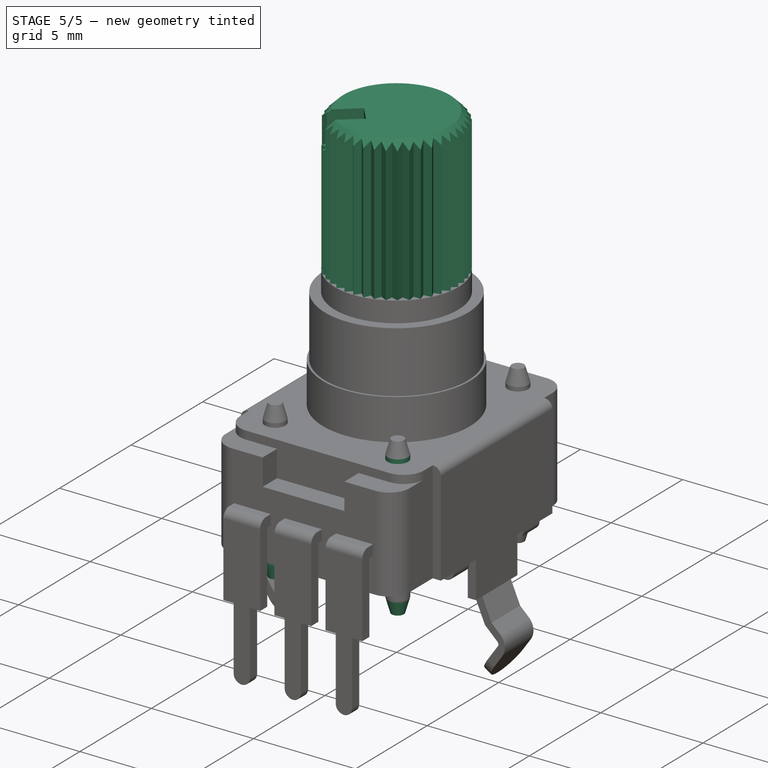
[diagram: stage 5 of 5 — iso view after this stage's code; geometry added in this stage tinted green]
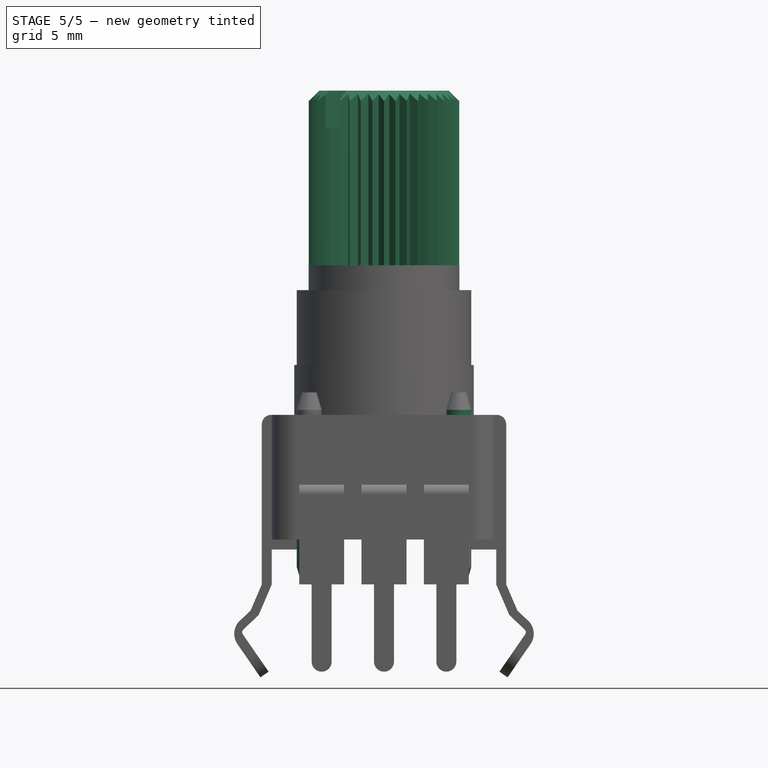
[diagram: stage 5 of 5 — front view after this stage's code; geometry added in this stage tinted green]
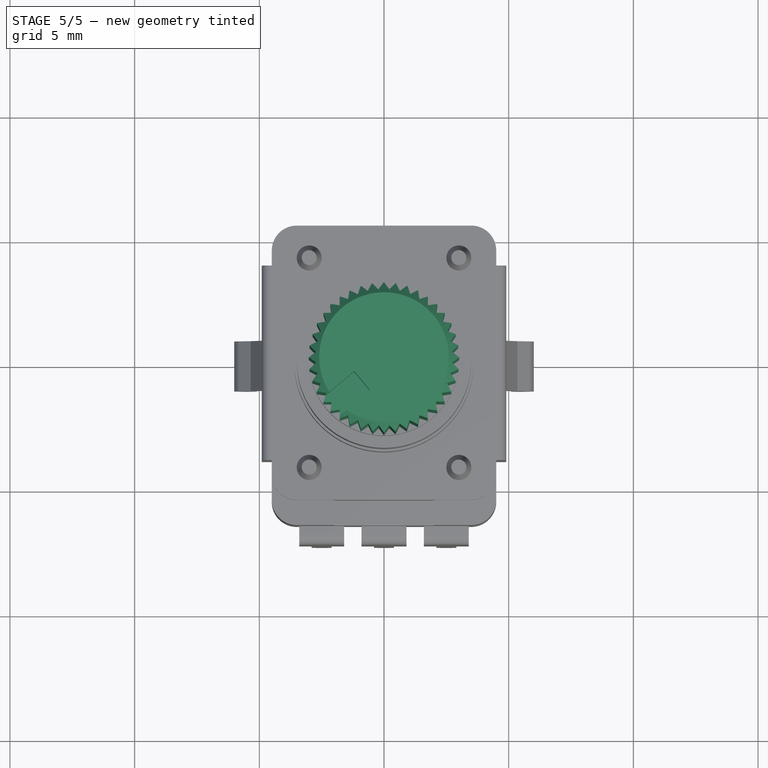
[diagram: stage 5 of 5 — top view after this stage's code; geometry added in this stage tinted green]
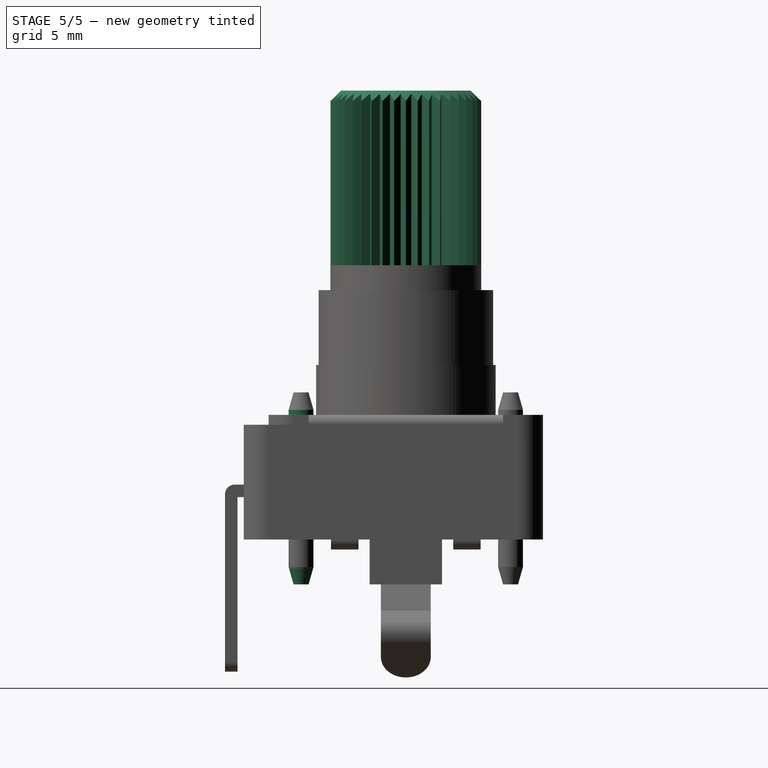
[diagram: stage 5 of 5 — right view after this stage's code; geometry added in this stage tinted green]
FEATURE [Sketcher::SketchObject] Sketch
  FullyConstrained = true
  MapMode = 5
  Support = -> [XY_Plane]
  sketch-geometry (80):
    g0: LineSegment StartX=3.02 StartY=0 StartZ=0 EndX=2.71811 EndY=0.219739 EndZ=0
    g1: LineSegment StartX=2.71811 StartY=0.219739 StartZ=0 EndX=2.97883 EndY=0.48 EndZ=0
    g2: LineSegment StartX=2.97883 StartY=0.48 StartZ=0 EndX=2.66481 EndY=0.64 EndZ=0
    g3: LineSegment StartX=2.66481 StartY=0.64 StartZ=0 EndX=2.8755 EndY=0.93 EndZ=0
    g4: LineSegment StartX=2.8755 StartY=0.93 StartZ=0 EndX=2.53696 EndY=1.04 EndZ=0
    g5: LineSegment StartX=2.53696 StartY=1.04 StartZ=0 EndX=2.7051 EndY=1.37 EndZ=0
    g6: LineSegment StartX=2.7051 StartY=1.37 StartZ=0 EndX=2.32628 EndY=1.43 EndZ=0
    g7: LineSegment StartX=2.32628 StartY=1.43 StartZ=0 EndX=2.44 EndY=1.78 EndZ=0
    g8: LineSegment StartX=2.44 StartY=1.78 StartZ=0 EndX=2.08371 EndY=1.78 EndZ=0
    g9: LineSegment StartX=2.08371 StartY=1.78 StartZ=0 EndX=2.14073 EndY=2.14 EndZ=0
    g10: LineSegment StartX=2.14073 StartY=2.14 StartZ=0 EndX=1.76191 EndY=2.08 EndZ=0
    g11: LineSegment StartX=1.76191 StartY=2.08 StartZ=0 EndX=1.76191 EndY=2.44 EndZ=0
    g12: LineSegment StartX=1.76191 StartY=2.44 StartZ=0 EndX=1.42336 EndY=2.33 EndZ=0
    g13: LineSegment StartX=1.42336 StartY=2.33 StartZ=0 EndX=1.36634 EndY=2.69 EndZ=0
    g14: LineSegment StartX=1.36634 StartY=2.69 StartZ=0 EndX=1.05232 EndY=2.53 EndZ=0
    g15: LineSegment StartX=1.05232 StartY=2.53 StartZ=0 EndX=0.938602 EndY=2.88 EndZ=0
    g16: LineSegment StartX=0.938602 StartY=2.88 StartZ=0 EndX=0.635798 EndY=2.66 EndZ=0
    g17: LineSegment StartX=0.635798 StartY=2.66 StartZ=0 EndX=0.47275 EndY=2.98 EndZ=0
    g18: LineSegment StartX=0.47275 StartY=2.98 StartZ=0 EndX=0.21275 EndY=2.72 EndZ=0
    g19: LineSegment StartX=0.21275 StartY=2.72 StartZ=0 EndX=-0.00521293 EndY=3.02 EndZ=0
    g20: LineSegment StartX=-0.00521293 StartY=3.02 StartZ=0 EndX=-0.223176 EndY=2.72 EndZ=0
    g21: LineSegment StartX=-0.223176 StartY=2.72 StartZ=0 EndX=-0.483176 EndY=2.98 EndZ=0
    g22: LineSegment StartX=-0.483176 StartY=2.98 StartZ=0 EndX=-0.646224 EndY=2.66 EndZ=0
    g23: LineSegment StartX=-0.646224 StartY=2.66 StartZ=0 EndX=-0.935264 EndY=2.87 EndZ=0
    g24: LineSegment StartX=-0.935264 StartY=2.87 StartZ=0 EndX=-1.04899 EndY=2.52 EndZ=0
    g25: LineSegment StartX=-1.04899 StartY=2.52 StartZ=0 EndX=-1.38263 EndY=2.69 EndZ=0
    g26: LineSegment StartX=-1.38263 StartY=2.69 StartZ=0 EndX=-1.43965 EndY=2.33 EndZ=0
    g27: LineSegment StartX=-1.43965 StartY=2.33 StartZ=0 EndX=-1.77819 EndY=2.44 EndZ=0
    g28: LineSegment StartX=-1.77819 StartY=2.44 StartZ=0 EndX=-1.77819 EndY=2.08 EndZ=0
    g29: LineSegment StartX=-1.77819 StartY=2.08 StartZ=0 EndX=-2.15702 EndY=2.14 EndZ=0
    g30: LineSegment StartX=-2.15702 StartY=2.14 StartZ=0 EndX=-2.1 EndY=1.78 EndZ=0
    g31: LineSegment StartX=-2.1 StartY=1.78 StartZ=0 EndX=-2.42783 EndY=1.78 EndZ=0
    g32: LineSegment StartX=-2.42783 StartY=1.78 StartZ=0 EndX=-2.31411 EndY=1.43 EndZ=0
    g33: LineSegment StartX=-2.31411 StartY=1.43 StartZ=0 EndX=-2.69293 EndY=1.37 EndZ=0
    g34: LineSegment StartX=-2.69293 StartY=1.37 StartZ=0 EndX=-2.52479 EndY=1.04 EndZ=0
    g35: LineSegment StartX=-2.52479 StartY=1.04 StartZ=0 EndX=-2.86333 EndY=0.93 EndZ=0
    g36: LineSegment StartX=-2.86333 StartY=0.93 StartZ=0 EndX=-2.65264 EndY=0.64 EndZ=0
    g37: LineSegment StartX=-2.65264 StartY=0.64 StartZ=0 EndX=-2.98628 EndY=0.47 EndZ=0
    g38: LineSegment StartX=-2.98628 StartY=0.47 StartZ=0 EndX=-2.72628 EndY=0.21 EndZ=0
    g39: LineSegment StartX=-2.72628 StartY=0.21 StartZ=0 EndX=-3.01532 EndY=0 EndZ=0
    g40: LineSegment StartX=-3.01532 StartY=0 StartZ=0 EndX=-2.72628 EndY=-0.21 EndZ=0
    g41: LineSegment StartX=-2.72628 StartY=-0.21 StartZ=0 EndX=-2.98628 EndY=-0.47 EndZ=0
    g42: LineSegment StartX=-2.98628 StartY=-0.47 StartZ=0 EndX=-2.65264 EndY=-0.64 EndZ=0
    g43: LineSegment StartX=-2.65264 StartY=-0.64 StartZ=0 EndX=-2.8706 EndY=-0.94 EndZ=0
    g44: LineSegment StartX=-2.8706 StartY=-0.94 StartZ=0 EndX=-2.53206 EndY=-1.05 EndZ=0
    g45: LineSegment StartX=-2.53206 StartY=-1.05 StartZ=0 EndX=-2.6951 EndY=-1.37 EndZ=0
    g46: LineSegment StartX=-2.6951 StartY=-1.37 StartZ=0 EndX=-2.31628 EndY=-1.43 EndZ=0
    g47: LineSegment StartX=-2.31628 StartY=-1.43 StartZ=0 EndX=-2.43 EndY=-1.78 EndZ=0
    g48: LineSegment StartX=-2.43 StartY=-1.78 StartZ=0 EndX=-2.09638 EndY=-1.78 EndZ=0
    g49: LineSegment StartX=-2.09638 StartY=-1.78 StartZ=0 EndX=-2.1534 EndY=-2.14 EndZ=0
    g50: LineSegment StartX=-2.1534 StartY=-2.14 StartZ=0 EndX=-1.77457 EndY=-2.08 EndZ=0
    g51: LineSegment StartX=-1.77457 StartY=-2.08 StartZ=0 EndX=-1.77457 EndY=-2.44 EndZ=0
    g52: LineSegment StartX=-1.77457 StartY=-2.44 StartZ=0 EndX=-1.43603 EndY=-2.33 EndZ=0
    g53: LineSegment StartX=-1.43603 StartY=-2.33 StartZ=0 EndX=-1.37901 EndY=-2.69 EndZ=0
    g54: LineSegment StartX=-1.37901 StartY=-2.69 StartZ=0 EndX=-1.04537 EndY=-2.52 EndZ=0
    g55: LineSegment StartX=-1.04537 StartY=-2.52 StartZ=0 EndX=-0.931645 EndY=-2.87 EndZ=0
    g56: LineSegment StartX=-0.931645 StartY=-2.87 StartZ=0 EndX=-0.628841 EndY=-2.65 EndZ=0
    g57: LineSegment StartX=-0.628841 StartY=-2.65 StartZ=0 EndX=-0.460697 EndY=-2.98 EndZ=0
    g58: LineSegment StartX=-0.460697 StartY=-2.98 StartZ=0 EndX=-0.210697 EndY=-2.73 EndZ=0
    g59: LineSegment StartX=-0.210697 StartY=-2.73 StartZ=0 EndX=0 EndY=-3.02 EndZ=0
    g60: LineSegment StartX=0 StartY=-3.02 StartZ=0 EndX=0.210697 EndY=-2.73 EndZ=0
    g61: LineSegment StartX=0.210697 StartY=-2.73 StartZ=0 EndX=0.460697 EndY=-2.98 EndZ=0
    g62: LineSegment StartX=0.460697 StartY=-2.98 StartZ=0 EndX=0.623745 EndY=-2.66 EndZ=0
    g63: LineSegment StartX=0.623745 StartY=-2.66 StartZ=0 EndX=0.912786 EndY=-2.87 EndZ=0
    g64: LineSegment StartX=0.912786 StartY=-2.87 StartZ=0 EndX=1.02651 EndY=-2.52 EndZ=0
    g65: LineSegment StartX=1.02651 StartY=-2.52 StartZ=0 EndX=1.36015 EndY=-2.69 EndZ=0
    g66: LineSegment StartX=1.36015 StartY=-2.69 StartZ=0 EndX=1.41717 EndY=-2.33 EndZ=0
    g67: LineSegment StartX=1.41717 StartY=-2.33 StartZ=0 EndX=1.75571 EndY=-2.44 EndZ=0
    g68: LineSegment StartX=1.75571 StartY=-2.44 StartZ=0 EndX=1.75571 EndY=-2.08 EndZ=0
    g69: LineSegment StartX=1.75571 StartY=-2.08 StartZ=0 EndX=2.13454 EndY=-2.14 EndZ=0
    g70: LineSegment StartX=2.13454 StartY=-2.14 StartZ=0 EndX=2.07752 EndY=-1.78 EndZ=0
    g71: LineSegment StartX=2.07752 StartY=-1.78 StartZ=0 EndX=2.4308 EndY=-1.78 EndZ=0
    g72: LineSegment StartX=2.4308 StartY=-1.78 StartZ=0 EndX=2.31708 EndY=-1.43 EndZ=0
    g73: LineSegment StartX=2.31708 StartY=-1.43 StartZ=0 EndX=2.6959 EndY=-1.37 EndZ=0
    g74: LineSegment StartX=2.6959 StartY=-1.37 StartZ=0 EndX=2.52776 EndY=-1.04 EndZ=0
    g75: LineSegment StartX=2.52776 StartY=-1.04 StartZ=0 EndX=2.86631 EndY=-0.93 EndZ=0
    g76: LineSegment StartX=2.86631 StartY=-0.93 StartZ=0 EndX=2.65561 EndY=-0.64 EndZ=0
    g77: LineSegment StartX=2.65561 StartY=-0.64 StartZ=0 EndX=2.98925 EndY=-0.47 EndZ=0
    g78: LineSegment StartX=2.98925 StartY=-0.47 StartZ=0 EndX=2.73043 EndY=-0.21 EndZ=0
    g79: LineSegment StartX=2.73043 StartY=-0.21 StartZ=0 EndX=3.02 EndY=0 EndZ=0
  constraints (240):
    c: Horizontal(g8)
    c: Vertical(g11)
    c: Vertical(g28)
    c: Horizontal(g31)
    c: Horizontal(g48)
    c: Vertical(g51)
    c: Vertical(g68)
    c: Horizontal(g71)
    c: Coincident(g77,g78)
    c: Coincident(g70,g71)
    c: Coincident(g0,g1)
    c: Coincident(g1,g2)
    c: Coincident(g2,g3)
    c: Coincident(g3,g4)
    c: Coincident(g4,g5)
    c: Coincident(g6,g7)
    c: Coincident(g7,g8)
    c: Coincident(g8,g9)
    c: Coincident(g9,g10)
    c: Coincident(g10,g11)
    c: Coincident(g11,g12)
    c: Coincident(g12,g13)
    c: Coincident(g13,g14)
    c: Coincident(g14,g15)
    c: Coincident(g15,g16)
    c: Coincident(g16,g17)
    c: Coincident(g17,g18)
    c: Coincident(g19,g20)
    c: Coincident(g20,g21)
    c: Coincident(g21,g22)
    c: Coincident(g22,g23)
    c: Coincident(g23,g24)
    c: Coincident(g24,g25)
    c: Coincident(g25,g26)
    c: Coincident(g27,g28)
    c: Coincident(g26,g27)
    c: Coincident(g28,g29)
    c: Coincident(g29,g30)
    c: Coincident(g31,g32)
    c: Coincident(g33,g34)
    c: Coincident(g35,g36)
    c: Coincident(g37,g38)
    c: Coincident(g39,g40)
    c: Coincident(g41,g42)
    c: Coincident(g43,g44)
    c: Coincident(g45,g46)
    c: Coincident(g47,g48)
    c: Coincident(g49,g50)
    c: Coincident(g51,g52)
    c: Coincident(g53,g54)
    c: Coincident(g54,g55)
    c: Coincident(g55,g56)
    c: Coincident(g56,g57)
    c: Coincident(g57,g58)
    c: Coincident(g58,g59)
    c: Coincident(g59,g60)
    c: Coincident(g60,g61)
    c: Coincident(g61,g62)
    c: Coincident(g62,g63)
    c: Coincident(g63,g64)
    c: Coincident(g64,g65)
    c: Coincident(g65,g66)
    c: Coincident(g66,g67)
    c: Coincident(g67,g68)
    c: Coincident(g68,g69)
    c: Coincident(g69,g70)
    c: Coincident(g78,g79)
    c: Coincident(g76,g77)
    c: Coincident(g74,g75)
    c: Coincident(g72,g73)
    c: Coincident(g18,g19)
    c: Coincident(g30,g31)
    c: Coincident(g44,g45)
    c: Coincident(g42,g43)
    c: Coincident(g40,g41)
    c: Coincident(g38,g39)
    c: Coincident(g46,g47)
    c: Coincident(g48,g49)
    c: Coincident(g50,g51)
    c: Coincident(g52,g53)
    c: Coincident(g37,g36)
    c: Coincident(g35,g34)
    c: Coincident(g33,g32)
    c: Coincident(g79,g0)
    c: Coincident(g71,g72)
    c: Coincident(g73,g74)
    c: Coincident(g76,g75)
    c: Coincident(g5,g6)
    c: Angle(g0,g79) = 1.25664
    c: Angle(g0,g1) = 1.41372
    c: DistanceX(g0) = 3.02
    c: DistanceY(g0) = 0
    c: Angle(g2,g1) = 1.25576
    c: Angle(g2,g3) = 1.41372
    c: Angle(g4,g3) = 1.25664
    c: Angle(g6,g5) = 1.25664
    c: Angle(g4,g5) = 1.41372
    c: Angle(g6,g7) = 1.41372
    c: Angle(g8,g7) = 1.25664
    c: Angle(g8,g9) = 1.41372
    c: Angle(g10,g9) = 1.25664
    c: Angle(g12,g11) = 1.25664
    c: Angle(g14,g13) = 1.25664
    c: Angle(g14,g15) = 1.41372
    c: Angle(g12,g13) = 1.41372
    c: Angle(g16,g15) = 1.25664
    c: Angle(g16,g17) = 1.41372
    c: Angle(g18,g17) = 1.25664
    c: Angle(g18,g19) = 1.41372
    c: Angle(g20,g19) = 1.25664
    c: Angle(g20,g21) = 1.41372
    c: Angle(g22,g21) = 1.25664
    c: Angle(g22,g23) = 1.41372
    c: Angle(g24,g23) = 1.25664
    c: Angle(g24,g25) = 1.41372
    c: Angle(g26,g25) = 1.25664
    c: Angle(g26,g27) = 1.41372
    c: Angle(g28,g29) = 1.41372
    c: Angle(g30,g29) = 1.25664
    c: Angle(g38,g39) = 1.41372
    c: Angle(g38,g37) = 1.25664
    c: Angle(g36,g37) = 1.41372
    c: Angle(g36,g35) = 1.25664
    c: Angle(g34,g35) = 1.41372
    c: Angle(g34,g33) = 1.25664
    c: Angle(g32,g33) = 1.41372
    c: Angle(g32,g31) = 1.25664
    c: Angle(g40,g39) = 1.25664
    c: Angle(g40,g41) = 1.41372
    c: Angle(g42,g41) = 1.25664
    c: Angle(g42,g43) = 1.41372
    c: Angle(g44,g43) = 1.25664
    c: Angle(g46,g45) = 1.25664
    c: Angle(g44,g45) = 1.41372
    c: Angle(g46,g47) = 1.41372
    c: Angle(g50,g49) = 1.25664
    c: Angle(g50,g51) = 1.41372
    c: Angle(g52,g51) = 1.25664
    c: Angle(g52,g53) = 1.41372
    c: Angle(g54,g53) = 1.25664
    c: Angle(g54,g55) = 1.41372
    c: Angle(g56,g55) = 1.25664
    c: Angle(g56,g57) = 1.41372
    c: Angle(g58,g57) = 1.25664
    c: Angle(g58,g59) = 1.41372
    c: Angle(g60,g59) = 1.25664
    c: Angle(g60,g61) = 1.41372
    c: Angle(g62,g61) = 1.25664
    c: Angle(g64,g63) = 1.25664
    c: Angle(g62,g63) = 1.41372
    c: Angle(g64,g65) = 1.41372
    c: Angle(g66,g65) = 1.25664
    c: Angle(g66,g67) = 1.41372
    c: Angle(g68,g69) = 1.41372
    c: Angle(g70,g69) = 1.25664
    c: Angle(g72,g71) = 1.25664
    c: Angle(g72,g73) = 1.41372
    c: Angle(g74,g73) = 1.25664
    c: Angle(g74,g75) = 1.41372
    c: Angle(g76,g75) = 1.25664
    c: Angle(g76,g77) = 1.41372
    c: Angle(g78,g77) = 1.25891
    c: DistanceY(g78) = -0.21
    c: DistanceY(g77) = -0.47
    c: DistanceY(g76) = -0.64
    c: DistanceY(g75) = -0.93
    c: DistanceY(g74) = -1.04
    c: DistanceY(g73) = -1.37
    c: DistanceY(g72) = -1.43
    c: DistanceY(g71) = -1.78
    c: DistanceY(g69) = -2.14
    c: DistanceY(g68) = -2.08
    c: DistanceY(g67) = -2.44
    c: DistanceY(g66) = -2.33
    c: DistanceY(g65) = -2.69
    c: DistanceY(g64) = -2.52
    c: DistanceY(g63) = -2.87
    c: DistanceY(g62) = -2.66
    c: DistanceY(g61) = -2.98
    c: DistanceY(g60) = -2.73
    c: DistanceY(g59) = -3.02
    c: DistanceX(g59) = 0
    c: DistanceY(g58) = -2.73
    c: DistanceY(g57) = -2.98
    c: DistanceY(g56) = -2.65
    c: DistanceY(g55) = -2.87
    c: DistanceY(g54) = -2.52
    c: DistanceY(g53) = -2.69
    c: DistanceY(g52) = -2.33
    c: DistanceY(g51) = -2.44
    c: DistanceY(g50) = -2.08
    c: DistanceY(g49) = -2.14
    c: DistanceY(g49,g49) = 0.36
    c: DistanceY(g46) = -1.43
    c: DistanceY(g45) = -1.37
    c: DistanceX(g47) = -2.43
    c: DistanceY(g44) = -1.05
    c: DistanceY(g43) = -0.94
    c: DistanceY(g42) = -0.64
    c: DistanceY(g41) = -0.47
    c: DistanceY(g40) = -0.21
    c: DistanceY(g39) = 0
    c: DistanceY(g38) = 0.21
    c: DistanceY(g37) = 0.47
    c: DistanceY(g36) = 0.64
    c: DistanceY(g35) = 0.93
    c: DistanceY(g34) = 1.04
    c: DistanceY(g33) = 1.37
    c: DistanceY(g32) = 1.43
    c: DistanceY(g31) = 1.78
    c: DistanceY(g29) = 2.14
    c: DistanceY(g28) = 2.08
    c: DistanceY(g27) = 2.44
    c: DistanceX(g30) = -2.1
    c: DistanceY(g26) = 2.33
    c: DistanceY(g25) = 2.69
    c: DistanceY(g24) = 2.52
    c: DistanceY(g23) = 2.87
    c: DistanceY(g22) = 2.66
    c: DistanceY(g21) = 2.98
    c: DistanceY(g20) = 2.72
    c: DistanceY(g19) = 3.02
    c: DistanceY(g18) = 2.72
    c: DistanceY(g17) = 2.98
    c: DistanceY(g16) = 2.66
    c: DistanceY(g15) = 2.88
    c: DistanceY(g14) = 2.53
    c: DistanceY(g13) = 2.69
    c: DistanceY(g12) = 2.33
    c: DistanceY(g11) = 2.44
    c: DistanceY(g10) = 2.08
    c: DistanceY(g9) = 2.14
    c: DistanceY(g8) = 1.78
    c: DistanceX(g7) = 2.44
    c: DistanceY(g6) = 1.43
    c: DistanceY(g5) = 1.37
    c: DistanceY(g4) = 1.04
    c: DistanceY(g3) = 0.93
    c: DistanceY(g2) = 0.64
    c: DistanceY(g1) = 0.48
FEATURE [PartDesign::Body] Body
  Group = -> [Sketch]
  Origin = -> Origin
FEATURE [Part::Extrusion] Extrude
  Base = -> Sketch
  Dir = (0,0,1)
  DirMode = 2
  FaceMakerClass = Part::FaceMakerBullseye
  LengthFwd = 7
  LengthRev = 0
  Solid = true
  Symmetric = false
FEATURE [Part::Cone] Cone
  Angle = 360
  AttacherType = Attacher::AttachEngine3D
  Height = 0.4
  Placement = pos=(0,0,6.6) rot=(0,0,1;0rad)
  Radius1 = 3
  Radius2 = 2.6
FEATURE [Part::Cylinder] Cylinder
  Angle = 360
  AttacherType = Attacher::AttachEngine3D
  Height = 0.4
  Placement = pos=(0,0,6.6) rot=(0,0,1;0rad)
  Radius = 3.1
FEATURE [Part::Box] Box  label="Cube"
  AttacherType = Attacher::AttachEngine3D
  Height = 1.5
  Length = 1
  Placement = pos=(-2.58,-1.72,5.5) rot=(0,0,-1;0.872665rad)
  Width = 1.8
FEATURE [Part::Cut] Cut
  Base = -> Extrude
  Tool = -> Box
FEATURE [Part::Cut] Cut001
  Base = -> Cylinder
  Tool = -> Cone
FEATURE [Part::Cut] Cut002
  Base = -> Cut
  Placement = pos=(0,0,12.8) rot=(0,0,1;0rad)
  Tool = -> Cut001
FEATURE [Part::Cone] Cone001
  Angle = 360
  AttacherType = Attacher::AttachEngine3D
  Height = 0.7
  Placement = pos=(-3,-4.2,0) rot=(0,0,1;0rad)
  Radius1 = 0.3
  Radius2 = 0.5
FEATURE [Part::Cylinder] Cylinder001
  Angle = 360
  AttacherType = Attacher::AttachEngine3D
  Height = 1.1
  Placement = pos=(-3,-4.2,0.7) rot=(0,0,1;0rad)
  Radius = 0.5
FEATURE [Part::Cone] Cone002
  Angle = 360
  AttacherType = Attacher::AttachEngine3D
  Height = 0.7
  Placement = pos=(3,-4.2,0) rot=(0,0,1;0rad)
  Radius1 = 0.3
  Radius2 = 0.5
FEATURE [Part::Cylinder] Cylinder002
  Angle = 360
  AttacherType = Attacher::AttachEngine3D
  Height = 0.2
  Placement = pos=(3,-4.2,6.8) rot=(0,0,1;0rad)
  Radius = 0.5
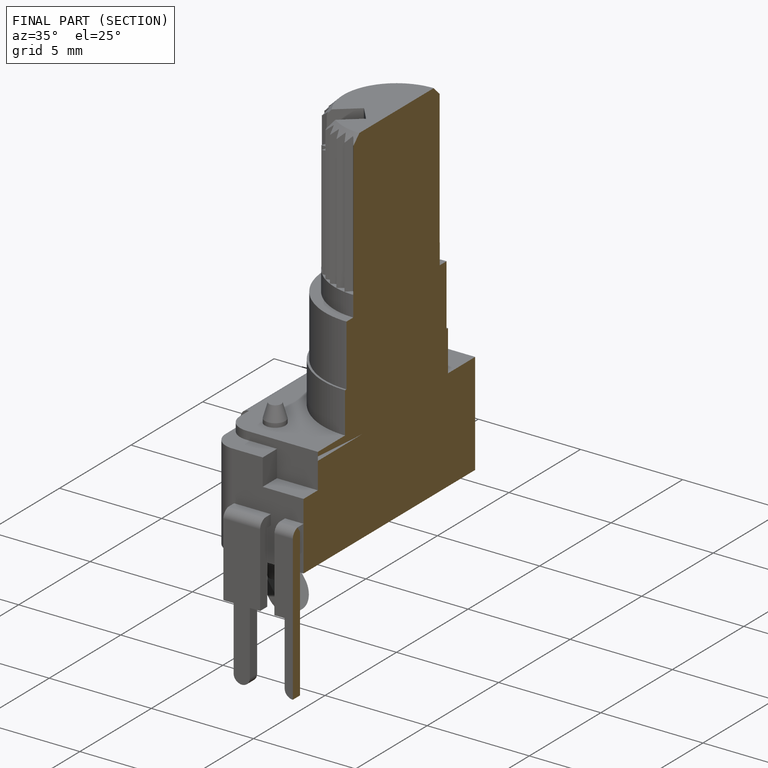
[diagram: finished part — half-section view (interior)]
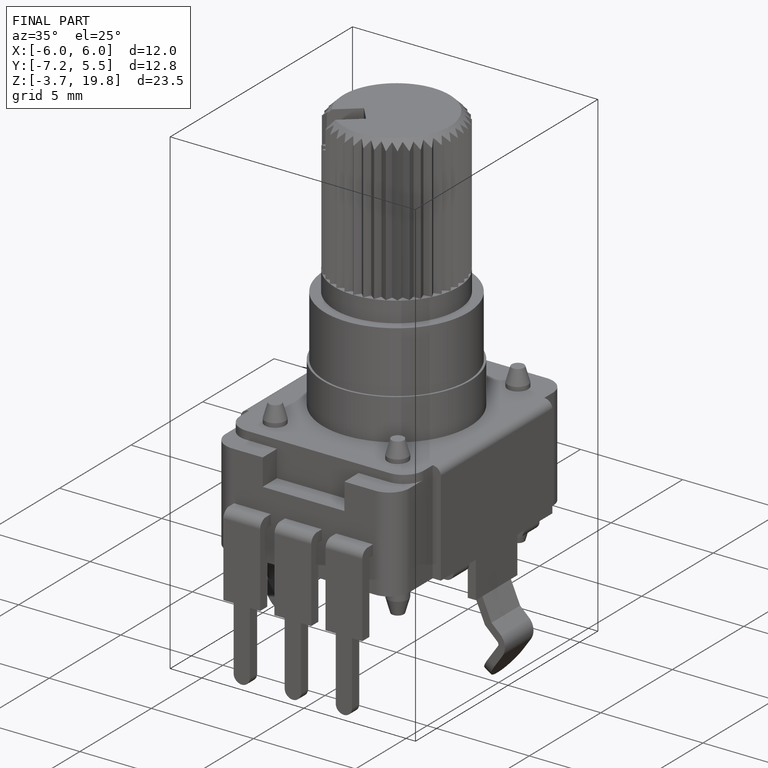
[diagram: finished part — iso view with bounding-box wireframe]
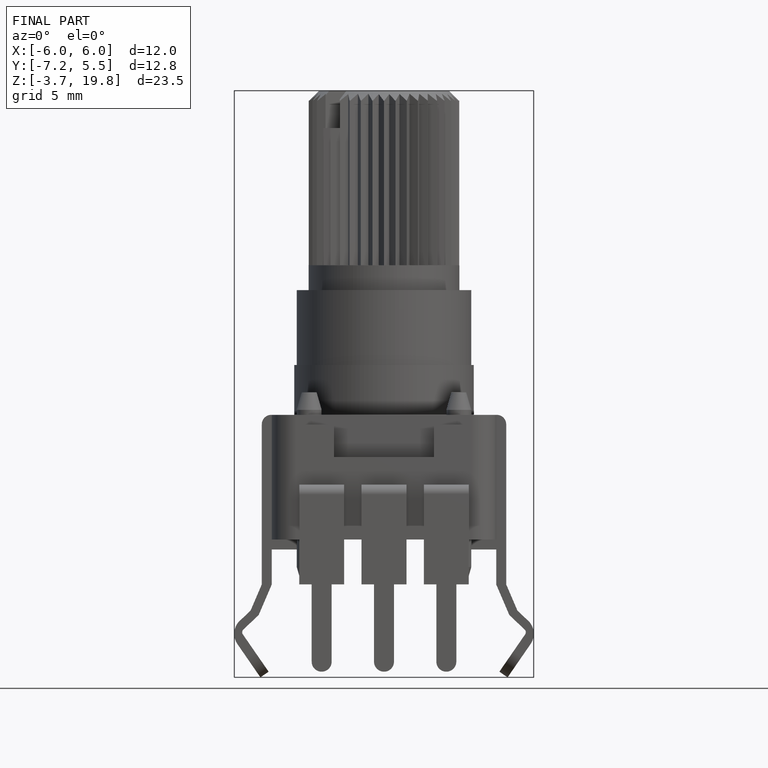
[diagram: finished part — front view with bounding-box wireframe]
